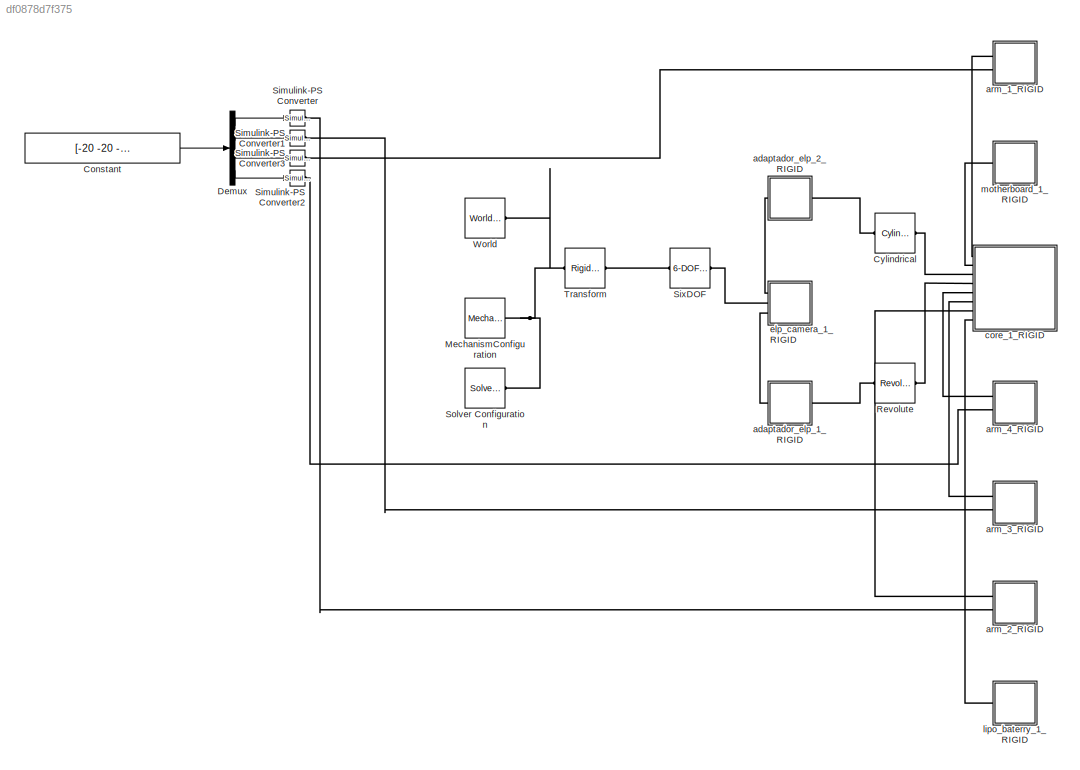
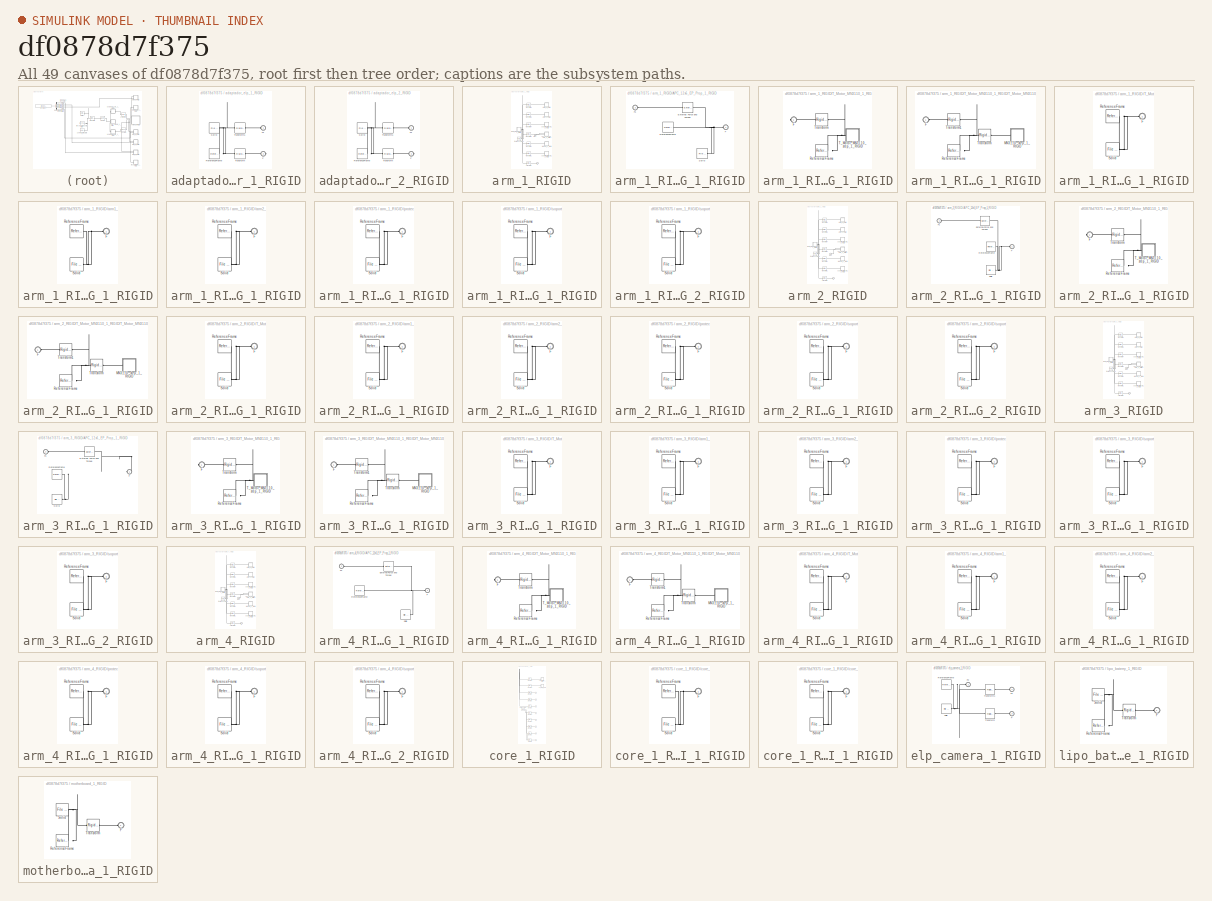
[diagram: thumbnail index - all 49 canvases of the model, root first then tree order]
MODEL slx_df0878d7f375
KIND model
CONFIG AbsTol = auto
CONFIG EnableMultiTasking = off
CONFIG FixedStep = auto
CONFIG MaxStep = auto
CONFIG MinStep = auto
CONFIG RelTol = 1e-3
CONFIG SampleTimeConstraint = Unconstrained
CONFIG Solver = VariableStepAuto
CONFIG SolverName = VariableStepAuto
CONFIG StartTime = 0.0
CONFIG StopTime = 10.0
WORKSPACE source: external: MATLAB File  (data not in archive)
BLOCK [Constant] Constant
  Value = [-20 -20  -8  -8]
BLOCK [Reference] Cylindrical  REF=sm_lib/Joints/Cylindrical
Joint
  Ports = [0, 0, 0, 0, 0, 1, 1]
  SourceBlock = sm_lib/Joints/Cylindrical\nJoint
  SourceProductBaseCode = MS
  SourceType = Cylindrical\nJoint
BLOCK [Demux] Demux
  Ports = [1, 4]
BLOCK [Reference] MechanismConfiguration  REF=sm_lib/Utilities/Mechanism
Configuration
  Ports = [0, 0, 0, 0, 0, 0, 1]
  SourceBlock = sm_lib/Utilities/Mechanism\nConfiguration
  SourceProductBaseCode = MS
  SourceType = Mechanism\nConfiguration
BLOCK [Reference] Revolute  REF=sm_lib/Joints/Revolute Joint
  Ports = [0, 0, 0, 0, 0, 1, 1]
  SourceBlock = sm_lib/Joints/Revolute Joint
  SourceProductBaseCode = MS
  SourceType = Revolute Joint
BLOCK [Reference] Simulink-PS Converter  REF=nesl_utility/Simulink-PS
Converter
  Ports = [1, 0, 0, 0, 0, 0, 1]
  SourceBlock = nesl_utility/Simulink-PS\nConverter
  SourceProductBaseCode = SS
  SourceType = Simulink-PS\nConverter
BLOCK [Reference] Simulink-PS Converter1  REF=nesl_utility/Simulink-PS
Converter
  Ports = [1, 0, 0, 0, 0, 0, 1]
  SourceBlock = nesl_utility/Simulink-PS\nConverter
  SourceProductBaseCode = SS
  SourceType = Simulink-PS\nConverter
BLOCK [Reference] Simulink-PS Converter2  REF=nesl_utility/Simulink-PS
Converter
  Ports = [1, 0, 0, 0, 0, 0, 1]
  SourceBlock = nesl_utility/Simulink-PS\nConverter
  SourceProductBaseCode = SS
  SourceType = Simulink-PS\nConverter
BLOCK [Reference] Simulink-PS Converter3  REF=nesl_utility/Simulink-PS
Converter
  Ports = [1, 0, 0, 0, 0, 0, 1]
  SourceBlock = nesl_utility/Simulink-PS\nConverter
  SourceProductBaseCode = SS
  SourceType = Simulink-PS\nConverter
BLOCK [Reference] SixDOF  REF=sm_lib/Joints/6-DOF Joint
  Ports = [0, 0, 0, 0, 0, 1, 1]
  SourceBlock = sm_lib/Joints/6-DOF Joint
  SourceProductBaseCode = MS
  SourceType = 6-DOF Joint
BLOCK [Reference] Solver Configuration  REF=nesl_utility/Solver
Configuration
  Ports = [0, 0, 0, 0, 0, 0, 1]
  SourceBlock = nesl_utility/Solver\nConfiguration
  SourceProductBaseCode = SS
  SourceType = Solver\nConfiguration
BLOCK [Reference] Transform  REF=sm_lib/Frames and
Transforms/Rigid
Transform
  Ports = [0, 0, 0, 0, 0, 1, 1]
  SourceBlock = sm_lib/Frames and\nTransforms/Rigid\nTransform
  SourceProductBaseCode = MS
  SourceType = Rigid\nTransform
BLOCK [Reference] World  REF=sm_lib/Frames and
Transforms/World Frame
  Ports = [0, 0, 0, 0, 0, 0, 1]
  SourceBlock = sm_lib/Frames and\nTransforms/World Frame
  SourceProductBaseCode = MS
  SourceType = World Frame
BLOCK [SubSystem] adaptador_elp_1_RIGID
  Ports = [0, 0, 0, 0, 0, 1, 1]
  RequestExecContextInheritance = off
BLOCK [PMIOPort] adaptador_elp_1_RIGID/F
  Port = 2
  Side = Right
BLOCK [PMIOPort] adaptador_elp_1_RIGID/F1
  Side = Left
BLOCK [Reference] adaptador_elp_1_RIGID/ReferenceFrame  REF=sm_lib/Frames and
Transforms/Reference
Frame
  Ports = [0, 0, 0, 0, 0, 0, 1]
  SourceBlock = sm_lib/Frames and\nTransforms/Reference\nFrame
  SourceProductBaseCode = MS
  SourceType = Reference\nFrame
BLOCK [Reference] adaptador_elp_1_RIGID/Solid  REF=sm_lib/Body Elements/File Solid
  Ports = [0, 0, 0, 0, 0, 0, 1]
  SourceBlock = sm_lib/Body Elements/File Solid
  SourceProductBaseCode = MS
  SourceType = File Solid
BLOCK [Reference] adaptador_elp_1_RIGID/Transform  REF=sm_lib/Frames and
Transforms/Rigid
Transform
  Ports = [0, 0, 0, 0, 0, 1, 1]
  SourceBlock = sm_lib/Frames and\nTransforms/Rigid\nTransform
  SourceProductBaseCode = MS
  SourceType = Rigid\nTransform
BLOCK [Reference] adaptador_elp_1_RIGID/Transform1  REF=sm_lib/Frames and
Transforms/Rigid
Transform
  Ports = [0, 0, 0, 0, 0, 1, 1]
  SourceBlock = sm_lib/Frames and\nTransforms/Rigid\nTransform
  SourceProductBaseCode = MS
  SourceType = Rigid\nTransform
BLOCK [SubSystem] adaptador_elp_2_RIGID
  Ports = [0, 0, 0, 0, 0, 1, 1]
  RequestExecContextInheritance = off
BLOCK [PMIOPort] adaptador_elp_2_RIGID/F
  Port = 2
  Side = Right
BLOCK [PMIOPort] adaptador_elp_2_RIGID/F1
  Side = Left
BLOCK [Reference] adaptador_elp_2_RIGID/ReferenceFrame  REF=sm_lib/Frames and
Transforms/Reference
Frame
  Ports = [0, 0, 0, 0, 0, 0, 1]
  SourceBlock = sm_lib/Frames and\nTransforms/Reference\nFrame
  SourceProductBaseCode = MS
  SourceType = Reference\nFrame
BLOCK [Reference] adaptador_elp_2_RIGID/Solid  REF=sm_lib/Body Elements/File Solid
  Ports = [0, 0, 0, 0, 0, 0, 1]
  SourceBlock = sm_lib/Body Elements/File Solid
  SourceProductBaseCode = MS
  SourceType = File Solid
BLOCK [Reference] adaptador_elp_2_RIGID/Transform  REF=sm_lib/Frames and
Transforms/Rigid
Transform
  Ports = [0, 0, 0, 0, 0, 1, 1]
  SourceBlock = sm_lib/Frames and\nTransforms/Rigid\nTransform
  SourceProductBaseCode = MS
  SourceType = Rigid\nTransform
BLOCK [Reference] adaptador_elp_2_RIGID/Transform1  REF=sm_lib/Frames and
Transforms/Rigid
Transform
  Ports = [0, 0, 0, 0, 0, 1, 1]
  SourceBlock = sm_lib/Frames and\nTransforms/Rigid\nTransform
  SourceProductBaseCode = MS
  SourceType = Rigid\nTransform
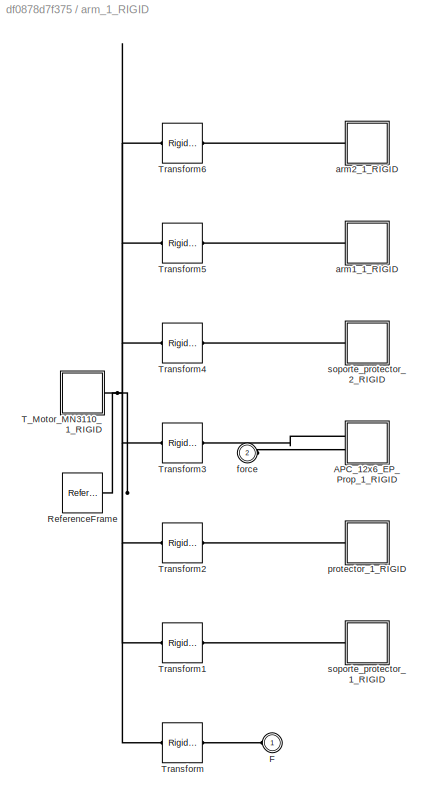
BLOCK [SubSystem] arm_1_RIGID
  Ports = [0, 0, 0, 0, 0, 2]
  RequestExecContextInheritance = off
BLOCK [SubSystem] arm_1_RIGID/APC_12x6_EP_Prop_1_RIGID
  Ports = [0, 0, 0, 0, 0, 2]
  RequestExecContextInheritance = off
BLOCK [Reference] arm_1_RIGID/APC_12x6_EP_Prop_1_RIGID/External Force and Torque  REF=sm_lib/Forces and
Torques/External Force
and Torque
  Ports = [0, 0, 0, 0, 0, 1, 1]
  SourceBlock = sm_lib/Forces and\nTorques/External Force\nand Torque
  SourceProductBaseCode = MS
  SourceType = External Force\nand Torque
BLOCK [PMIOPort] arm_1_RIGID/APC_12x6_EP_Prop_1_RIGID/F
  Side = Left
BLOCK [PMIOPort] arm_1_RIGID/APC_12x6_EP_Prop_1_RIGID/F1
  Port = 2
  Side = Left
BLOCK [Reference] arm_1_RIGID/APC_12x6_EP_Prop_1_RIGID/ReferenceFrame  REF=sm_lib/Frames and
Transforms/Reference
Frame
  Ports = [0, 0, 0, 0, 0, 0, 1]
  SourceBlock = sm_lib/Frames and\nTransforms/Reference\nFrame
  SourceProductBaseCode = MS
  SourceType = Reference\nFrame
BLOCK [Reference] arm_1_RIGID/APC_12x6_EP_Prop_1_RIGID/Solid  REF=sm_lib/Body Elements/File Solid
  Ports = [0, 0, 0, 0, 0, 0, 1]
  SourceBlock = sm_lib/Body Elements/File Solid
  SourceProductBaseCode = MS
  SourceType = File Solid
BLOCK [PMIOPort] arm_1_RIGID/F
  Side = Left
BLOCK [Reference] arm_1_RIGID/ReferenceFrame  REF=sm_lib/Frames and
Transforms/Reference
Frame
  Ports = [0, 0, 0, 0, 0, 0, 1]
  SourceBlock = sm_lib/Frames and\nTransforms/Reference\nFrame
  SourceProductBaseCode = MS
  SourceType = Reference\nFrame
BLOCK [SubSystem] arm_1_RIGID/T_Motor_MN3110_1_RIGID
  Ports = [0, 0, 0, 0, 0, 0, 1]
  RequestExecContextInheritance = off
BLOCK [PMIOPort] arm_1_RIGID/T_Motor_MN3110_1_RIGID/F
  Side = Right
BLOCK [Reference] arm_1_RIGID/T_Motor_MN3110_1_RIGID/ReferenceFrame  REF=sm_lib/Frames and
Transforms/Reference
Frame
  Ports = [0, 0, 0, 0, 0, 0, 1]
  SourceBlock = sm_lib/Frames and\nTransforms/Reference\nFrame
  SourceProductBaseCode = MS
  SourceType = Reference\nFrame
BLOCK [SubSystem] arm_1_RIGID/T_Motor_MN3110_1_RIGID/T_Motor_MN3110_step_1_RIGID
  Ports = [0, 0, 0, 0, 0, 1]
  RequestExecContextInheritance = off
BLOCK [PMIOPort] arm_1_RIGID/T_Motor_MN3110_1_RIGID/T_Motor_MN3110_step_1_RIGID/F
  Side = Left
BLOCK [SubSystem] arm_1_RIGID/T_Motor_MN3110_1_RIGID/T_Motor_MN3110_step_1_RIGID/MN3110_step_1_RIGID
  Ports = [0, 0, 0, 0, 0, 1]
  RequestExecContextInheritance = off
BLOCK [PMIOPort] arm_1_RIGID/T_Motor_MN3110_1_RIGID/T_Motor_MN3110_step_1_RIGID/MN3110_step_1_RIGID/F
  Side = Left
BLOCK [Reference] arm_1_RIGID/T_Motor_MN3110_1_RIGID/T_Motor_MN3110_step_1_RIGID/MN3110_step_1_RIGID/ReferenceFrame  REF=sm_lib/Frames and
Transforms/Reference
Frame
  Ports = [0, 0, 0, 0, 0, 0, 1]
  SourceBlock = sm_lib/Frames and\nTransforms/Reference\nFrame
  SourceProductBaseCode = MS
  SourceType = Reference\nFrame
BLOCK [Reference] arm_1_RIGID/T_Motor_MN3110_1_RIGID/T_Motor_MN3110_step_1_RIGID/MN3110_step_1_RIGID/Solid  REF=sm_lib/Body Elements/File Solid
  Ports = [0, 0, 0, 0, 0, 0, 1]
  SourceBlock = sm_lib/Body Elements/File Solid
  SourceProductBaseCode = MS
  SourceType = File Solid
BLOCK [Reference] arm_1_RIGID/T_Motor_MN3110_1_RIGID/T_Motor_MN3110_step_1_RIGID/ReferenceFrame  REF=sm_lib/Frames and
Transforms/Reference
Frame
  Ports = [0, 0, 0, 0, 0, 0, 1]
  SourceBlock = sm_lib/Frames and\nTransforms/Reference\nFrame
  SourceProductBaseCode = MS
  SourceType = Reference\nFrame
BLOCK [Reference] arm_1_RIGID/T_Motor_MN3110_1_RIGID/T_Motor_MN3110_step_1_RIGID/Transform  REF=sm_lib/Frames and
Transforms/Rigid
Transform
  Ports = [0, 0, 0, 0, 0, 1, 1]
  SourceBlock = sm_lib/Frames and\nTransforms/Rigid\nTransform
  SourceProductBaseCode = MS
  SourceType = Rigid\nTransform
BLOCK [Reference] arm_1_RIGID/T_Motor_MN3110_1_RIGID/T_Motor_MN3110_step_1_RIGID/Transform1  REF=sm_lib/Frames and
Transforms/Rigid
Transform
  Ports = [0, 0, 0, 0, 0, 1, 1]
  SourceBlock = sm_lib/Frames and\nTransforms/Rigid\nTransform
  SourceProductBaseCode = MS
  SourceType = Rigid\nTransform
BLOCK [Reference] arm_1_RIGID/T_Motor_MN3110_1_RIGID/Transform  REF=sm_lib/Frames and
Transforms/Rigid
Transform
  Ports = [0, 0, 0, 0, 0, 1, 1]
  SourceBlock = sm_lib/Frames and\nTransforms/Rigid\nTransform
  SourceProductBaseCode = MS
  SourceType = Rigid\nTransform
BLOCK [Reference] arm_1_RIGID/Transform  REF=sm_lib/Frames and
Transforms/Rigid
Transform
  Ports = [0, 0, 0, 0, 0, 1, 1]
  SourceBlock = sm_lib/Frames and\nTransforms/Rigid\nTransform
  SourceProductBaseCode = MS
  SourceType = Rigid\nTransform
BLOCK [Reference] arm_1_RIGID/Transform1  REF=sm_lib/Frames and
Transforms/Rigid
Transform
  Ports = [0, 0, 0, 0, 0, 1, 1]
  SourceBlock = sm_lib/Frames and\nTransforms/Rigid\nTransform
  SourceProductBaseCode = MS
  SourceType = Rigid\nTransform
BLOCK [Reference] arm_1_RIGID/Transform2  REF=sm_lib/Frames and
Transforms/Rigid
Transform
  Ports = [0, 0, 0, 0, 0, 1, 1]
  SourceBlock = sm_lib/Frames and\nTransforms/Rigid\nTransform
  SourceProductBaseCode = MS
  SourceType = Rigid\nTransform
BLOCK [Reference] arm_1_RIGID/Transform3  REF=sm_lib/Frames and
Transforms/Rigid
Transform
  Ports = [0, 0, 0, 0, 0, 1, 1]
  SourceBlock = sm_lib/Frames and\nTransforms/Rigid\nTransform
  SourceProductBaseCode = MS
  SourceType = Rigid\nTransform
BLOCK [Reference] arm_1_RIGID/Transform4  REF=sm_lib/Frames and
Transforms/Rigid
Transform
  Ports = [0, 0, 0, 0, 0, 1, 1]
  SourceBlock = sm_lib/Frames and\nTransforms/Rigid\nTransform
  SourceProductBaseCode = MS
  SourceType = Rigid\nTransform
BLOCK [Reference] arm_1_RIGID/Transform5  REF=sm_lib/Frames and
Transforms/Rigid
Transform
  Ports = [0, 0, 0, 0, 0, 1, 1]
  SourceBlock = sm_lib/Frames and\nTransforms/Rigid\nTransform
  SourceProductBaseCode = MS
  SourceType = Rigid\nTransform
BLOCK [Reference] arm_1_RIGID/Transform6  REF=sm_lib/Frames and
Transforms/Rigid
Transform
  Ports = [0, 0, 0, 0, 0, 1, 1]
  SourceBlock = sm_lib/Frames and\nTransforms/Rigid\nTransform
  SourceProductBaseCode = MS
  SourceType = Rigid\nTransform
BLOCK [SubSystem] arm_1_RIGID/arm1_1_RIGID
  Ports = [0, 0, 0, 0, 0, 1]
  RequestExecContextInheritance = off
BLOCK [PMIOPort] arm_1_RIGID/arm1_1_RIGID/F
  Side = Left
BLOCK [Reference] arm_1_RIGID/arm1_1_RIGID/ReferenceFrame  REF=sm_lib/Frames and
Transforms/Reference
Frame
  Ports = [0, 0, 0, 0, 0, 0, 1]
  SourceBlock = sm_lib/Frames and\nTransforms/Reference\nFrame
  SourceProductBaseCode = MS
  SourceType = Reference\nFrame
BLOCK [Reference] arm_1_RIGID/arm1_1_RIGID/Solid  REF=sm_lib/Body Elements/File Solid
  Ports = [0, 0, 0, 0, 0, 0, 1]
  SourceBlock = sm_lib/Body Elements/File Solid
  SourceProductBaseCode = MS
  SourceType = File Solid
BLOCK [SubSystem] arm_1_RIGID/arm2_1_RIGID
  Ports = [0, 0, 0, 0, 0, 1]
  RequestExecContextInheritance = off
BLOCK [PMIOPort] arm_1_RIGID/arm2_1_RIGID/F
  Side = Left
BLOCK [Reference] arm_1_RIGID/arm2_1_RIGID/ReferenceFrame  REF=sm_lib/Frames and
Transforms/Reference
Frame
  Ports = [0, 0, 0, 0, 0, 0, 1]
  SourceBlock = sm_lib/Frames and\nTransforms/Reference\nFrame
  SourceProductBaseCode = MS
  SourceType = Reference\nFrame
BLOCK [Reference] arm_1_RIGID/arm2_1_RIGID/Solid  REF=sm_lib/Body Elements/File Solid
  Ports = [0, 0, 0, 0, 0, 0, 1]
  SourceBlock = sm_lib/Body Elements/File Solid
  SourceProductBaseCode = MS
  SourceType = File Solid
BLOCK [PMIOPort] arm_1_RIGID/force
  Port = 2
  Side = Left
BLOCK [SubSystem] arm_1_RIGID/protector_1_RIGID
  Ports = [0, 0, 0, 0, 0, 1]
  RequestExecContextInheritance = off
BLOCK [PMIOPort] arm_1_RIGID/protector_1_RIGID/F
  Side = Left
BLOCK [Reference] arm_1_RIGID/protector_1_RIGID/ReferenceFrame  REF=sm_lib/Frames and
Transforms/Reference
Frame
  Ports = [0, 0, 0, 0, 0, 0, 1]
  SourceBlock = sm_lib/Frames and\nTransforms/Reference\nFrame
  SourceProductBaseCode = MS
  SourceType = Reference\nFrame
BLOCK [Reference] arm_1_RIGID/protector_1_RIGID/Solid  REF=sm_lib/Body Elements/File Solid
  Ports = [0, 0, 0, 0, 0, 0, 1]
  SourceBlock = sm_lib/Body Elements/File Solid
  SourceProductBaseCode = MS
  SourceType = File Solid
BLOCK [SubSystem] arm_1_RIGID/soporte_protector_1_RIGID
  Ports = [0, 0, 0, 0, 0, 1]
  RequestExecContextInheritance = off
BLOCK [PMIOPort] arm_1_RIGID/soporte_protector_1_RIGID/F
  Side = Left
BLOCK [Reference] arm_1_RIGID/soporte_protector_1_RIGID/ReferenceFrame  REF=sm_lib/Frames and
Transforms/Reference
Frame
  Ports = [0, 0, 0, 0, 0, 0, 1]
  SourceBlock = sm_lib/Frames and\nTransforms/Reference\nFrame
  SourceProductBaseCode = MS
  SourceType = Reference\nFrame
BLOCK [Reference] arm_1_RIGID/soporte_protector_1_RIGID/Solid  REF=sm_lib/Body Elements/File Solid
  Ports = [0, 0, 0, 0, 0, 0, 1]
  SourceBlock = sm_lib/Body Elements/File Solid
  SourceProductBaseCode = MS
  SourceType = File Solid
BLOCK [SubSystem] arm_1_RIGID/soporte_protector_2_RIGID
  Ports = [0, 0, 0, 0, 0, 1]
  RequestExecContextInheritance = off
BLOCK [PMIOPort] arm_1_RIGID/soporte_protector_2_RIGID/F
  Side = Left
BLOCK [Reference] arm_1_RIGID/soporte_protector_2_RIGID/ReferenceFrame  REF=sm_lib/Frames and
Transforms/Reference
Frame
  Ports = [0, 0, 0, 0, 0, 0, 1]
  SourceBlock = sm_lib/Frames and\nTransforms/Reference\nFrame
  SourceProductBaseCode = MS
  SourceType = Reference\nFrame
BLOCK [Reference] arm_1_RIGID/soporte_protector_2_RIGID/Solid  REF=sm_lib/Body Elements/File Solid
  Ports = [0, 0, 0, 0, 0, 0, 1]
  SourceBlock = sm_lib/Body Elements/File Solid
  SourceProductBaseCode = MS
  SourceType = File Solid
BLOCK [SubSystem] arm_2_RIGID
  Ports = [0, 0, 0, 0, 0, 2]
  RequestExecContextInheritance = off
BLOCK [SubSystem] arm_2_RIGID/APC_12x6_EP_Prop_1_RIGID
  Ports = [0, 0, 0, 0, 0, 2]
  RequestExecContextInheritance = off
BLOCK [Reference] arm_2_RIGID/APC_12x6_EP_Prop_1_RIGID/External Force and Torque  REF=sm_lib/Forces and
Torques/External Force
and Torque
  Ports = [0, 0, 0, 0, 0, 1, 1]
  SourceBlock = sm_lib/Forces and\nTorques/External Force\nand Torque
  SourceProductBaseCode = MS
  SourceType = External Force\nand Torque
BLOCK [PMIOPort] arm_2_RIGID/APC_12x6_EP_Prop_1_RIGID/F
  Side = Left
BLOCK [PMIOPort] arm_2_RIGID/APC_12x6_EP_Prop_1_RIGID/F1
  Port = 2
  Side = Left
BLOCK [Reference] arm_2_RIGID/APC_12x6_EP_Prop_1_RIGID/ReferenceFrame  REF=sm_lib/Frames and
Transforms/Reference
Frame
  Ports = [0, 0, 0, 0, 0, 0, 1]
  SourceBlock = sm_lib/Frames and\nTransforms/Reference\nFrame
  SourceProductBaseCode = MS
  SourceType = Reference\nFrame
BLOCK [Reference] arm_2_RIGID/APC_12x6_EP_Prop_1_RIGID/Solid  REF=sm_lib/Body Elements/File Solid
  Ports = [0, 0, 0, 0, 0, 0, 1]
  SourceBlock = sm_lib/Body Elements/File Solid
  SourceProductBaseCode = MS
  SourceType = File Solid
BLOCK [PMIOPort] arm_2_RIGID/F
  Side = Left
BLOCK [Reference] arm_2_RIGID/ReferenceFrame  REF=sm_lib/Frames and
Transforms/Reference
Frame
  Ports = [0, 0, 0, 0, 0, 0, 1]
  SourceBlock = sm_lib/Frames and\nTransforms/Reference\nFrame
  SourceProductBaseCode = MS
  SourceType = Reference\nFrame
BLOCK [SubSystem] arm_2_RIGID/T_Motor_MN3110_1_RIGID
  Ports = [0, 0, 0, 0, 0, 0, 1]
  RequestExecContextInheritance = off
BLOCK [PMIOPort] arm_2_RIGID/T_Motor_MN3110_1_RIGID/F
  Side = Right
BLOCK [Reference] arm_2_RIGID/T_Motor_MN3110_1_RIGID/ReferenceFrame  REF=sm_lib/Frames and
Transforms/Reference
Frame
  Ports = [0, 0, 0, 0, 0, 0, 1]
  SourceBlock = sm_lib/Frames and\nTransforms/Reference\nFrame
  SourceProductBaseCode = MS
  SourceType = Reference\nFrame
BLOCK [SubSystem] arm_2_RIGID/T_Motor_MN3110_1_RIGID/T_Motor_MN3110_step_1_RIGID
  Ports = [0, 0, 0, 0, 0, 1]
  RequestExecContextInheritance = off
BLOCK [PMIOPort] arm_2_RIGID/T_Motor_MN3110_1_RIGID/T_Motor_MN3110_step_1_RIGID/F
  Side = Left
BLOCK [SubSystem] arm_2_RIGID/T_Motor_MN3110_1_RIGID/T_Motor_MN3110_step_1_RIGID/MN3110_step_1_RIGID
  Ports = [0, 0, 0, 0, 0, 1]
  RequestExecContextInheritance = off
BLOCK [PMIOPort] arm_2_RIGID/T_Motor_MN3110_1_RIGID/T_Motor_MN3110_step_1_RIGID/MN3110_step_1_RIGID/F
  Side = Left
BLOCK [Reference] arm_2_RIGID/T_Motor_MN3110_1_RIGID/T_Motor_MN3110_step_1_RIGID/MN3110_step_1_RIGID/ReferenceFrame  REF=sm_lib/Frames and
Transforms/Reference
Frame
  Ports = [0, 0, 0, 0, 0, 0, 1]
  SourceBlock = sm_lib/Frames and\nTransforms/Reference\nFrame
  SourceProductBaseCode = MS
  SourceType = Reference\nFrame
BLOCK [Reference] arm_2_RIGID/T_Motor_MN3110_1_RIGID/T_Motor_MN3110_step_1_RIGID/MN3110_step_1_RIGID/Solid  REF=sm_lib/Body Elements/File Solid
  Ports = [0, 0, 0, 0, 0, 0, 1]
  SourceBlock = sm_lib/Body Elements/File Solid
  SourceProductBaseCode = MS
  SourceType = File Solid
BLOCK [Reference] arm_2_RIGID/T_Motor_MN3110_1_RIGID/T_Motor_MN3110_step_1_RIGID/ReferenceFrame  REF=sm_lib/Frames and
Transforms/Reference
Frame
  Ports = [0, 0, 0, 0, 0, 0, 1]
  SourceBlock = sm_lib/Frames and\nTransforms/Reference\nFrame
  SourceProductBaseCode = MS
  SourceType = Reference\nFrame
BLOCK [Reference] arm_2_RIGID/T_Motor_MN3110_1_RIGID/T_Motor_MN3110_step_1_RIGID/Transform  REF=sm_lib/Frames and
Transforms/Rigid
Transform
  Ports = [0, 0, 0, 0, 0, 1, 1]
  SourceBlock = sm_lib/Frames and\nTransforms/Rigid\nTransform
  SourceProductBaseCode = MS
  SourceType = Rigid\nTransform
BLOCK [Reference] arm_2_RIGID/T_Motor_MN3110_1_RIGID/T_Motor_MN3110_step_1_RIGID/Transform1  REF=sm_lib/Frames and
Transforms/Rigid
Transform
  Ports = [0, 0, 0, 0, 0, 1, 1]
  SourceBlock = sm_lib/Frames and\nTransforms/Rigid\nTransform
  SourceProductBaseCode = MS
  SourceType = Rigid\nTransform
BLOCK [Reference] arm_2_RIGID/T_Motor_MN3110_1_RIGID/Transform  REF=sm_lib/Frames and
Transforms/Rigid
Transform
  Ports = [0, 0, 0, 0, 0, 1, 1]
  SourceBlock = sm_lib/Frames and\nTransforms/Rigid\nTransform
  SourceProductBaseCode = MS
  SourceType = Rigid\nTransform
BLOCK [Reference] arm_2_RIGID/Transform  REF=sm_lib/Frames and
Transforms/Rigid
Transform
  Ports = [0, 0, 0, 0, 0, 1, 1]
  SourceBlock = sm_lib/Frames and\nTransforms/Rigid\nTransform
  SourceProductBaseCode = MS
  SourceType = Rigid\nTransform
BLOCK [Reference] arm_2_RIGID/Transform1  REF=sm_lib/Frames and
Transforms/Rigid
Transform
  Ports = [0, 0, 0, 0, 0, 1, 1]
  SourceBlock = sm_lib/Frames and\nTransforms/Rigid\nTransform
  SourceProductBaseCode = MS
  SourceType = Rigid\nTransform
BLOCK [Reference] arm_2_RIGID/Transform2  REF=sm_lib/Frames and
Transforms/Rigid
Transform
  Ports = [0, 0, 0, 0, 0, 1, 1]
  SourceBlock = sm_lib/Frames and\nTransforms/Rigid\nTransform
  SourceProductBaseCode = MS
  SourceType = Rigid\nTransform
BLOCK [Reference] arm_2_RIGID/Transform3  REF=sm_lib/Frames and
Transforms/Rigid
Transform
  Ports = [0, 0, 0, 0, 0, 1, 1]
  SourceBlock = sm_lib/Frames and\nTransforms/Rigid\nTransform
  SourceProductBaseCode = MS
  SourceType = Rigid\nTransform
BLOCK [Reference] arm_2_RIGID/Transform4  REF=sm_lib/Frames and
Transforms/Rigid
Transform
  Ports = [0, 0, 0, 0, 0, 1, 1]
  SourceBlock = sm_lib/Frames and\nTransforms/Rigid\nTransform
  SourceProductBaseCode = MS
  SourceType = Rigid\nTransform
BLOCK [Reference] arm_2_RIGID/Transform5  REF=sm_lib/Frames and
Transforms/Rigid
Transform
  Ports = [0, 0, 0, 0, 0, 1, 1]
  SourceBlock = sm_lib/Frames and\nTransforms/Rigid\nTransform
  SourceProductBaseCode = MS
  SourceType = Rigid\nTransform
BLOCK [Reference] arm_2_RIGID/Transform6  REF=sm_lib/Frames and
Transforms/Rigid
Transform
  Ports = [0, 0, 0, 0, 0, 1, 1]
  SourceBlock = sm_lib/Frames and\nTransforms/Rigid\nTransform
  SourceProductBaseCode = MS
  SourceType = Rigid\nTransform
BLOCK [SubSystem] arm_2_RIGID/arm1_1_RIGID
  Ports = [0, 0, 0, 0, 0, 1]
  RequestExecContextInheritance = off
BLOCK [PMIOPort] arm_2_RIGID/arm1_1_RIGID/F
  Side = Left
BLOCK [Reference] arm_2_RIGID/arm1_1_RIGID/ReferenceFrame  REF=sm_lib/Frames and
Transforms/Reference
Frame
  Ports = [0, 0, 0, 0, 0, 0, 1]
  SourceBlock = sm_lib/Frames and\nTransforms/Reference\nFrame
  SourceProductBaseCode = MS
  SourceType = Reference\nFrame
BLOCK [Reference] arm_2_RIGID/arm1_1_RIGID/Solid  REF=sm_lib/Body Elements/File Solid
  Ports = [0, 0, 0, 0, 0, 0, 1]
  SourceBlock = sm_lib/Body Elements/File Solid
  SourceProductBaseCode = MS
  SourceType = File Solid
BLOCK [SubSystem] arm_2_RIGID/arm2_1_RIGID
  Ports = [0, 0, 0, 0, 0, 1]
  RequestExecContextInheritance = off
BLOCK [PMIOPort] arm_2_RIGID/arm2_1_RIGID/F
  Side = Left
BLOCK [Reference] arm_2_RIGID/arm2_1_RIGID/ReferenceFrame  REF=sm_lib/Frames and
Transforms/Reference
Frame
  Ports = [0, 0, 0, 0, 0, 0, 1]
  SourceBlock = sm_lib/Frames and\nTransforms/Reference\nFrame
  SourceProductBaseCode = MS
  SourceType = Reference\nFrame
BLOCK [Reference] arm_2_RIGID/arm2_1_RIGID/Solid  REF=sm_lib/Body Elements/File Solid
  Ports = [0, 0, 0, 0, 0, 0, 1]
  SourceBlock = sm_lib/Body Elements/File Solid
  SourceProductBaseCode = MS
  SourceType = File Solid
BLOCK [PMIOPort] arm_2_RIGID/force
  Port = 2
  Side = Left
BLOCK [SubSystem] arm_2_RIGID/protector_1_RIGID
  Ports = [0, 0, 0, 0, 0, 1]
  RequestExecContextInheritance = off
BLOCK [PMIOPort] arm_2_RIGID/protector_1_RIGID/F
  Side = Left
BLOCK [Reference] arm_2_RIGID/protector_1_RIGID/ReferenceFrame  REF=sm_lib/Frames and
Transforms/Reference
Frame
  Ports = [0, 0, 0, 0, 0, 0, 1]
  SourceBlock = sm_lib/Frames and\nTransforms/Reference\nFrame
  SourceProductBaseCode = MS
  SourceType = Reference\nFrame
BLOCK [Reference] arm_2_RIGID/protector_1_RIGID/Solid  REF=sm_lib/Body Elements/File Solid
  Ports = [0, 0, 0, 0, 0, 0, 1]
  SourceBlock = sm_lib/Body Elements/File Solid
  SourceProductBaseCode = MS
  SourceType = File Solid
BLOCK [SubSystem] arm_2_RIGID/soporte_protector_1_RIGID
  Ports = [0, 0, 0, 0, 0, 1]
  RequestExecContextInheritance = off
BLOCK [PMIOPort] arm_2_RIGID/soporte_protector_1_RIGID/F
  Side = Left
BLOCK [Reference] arm_2_RIGID/soporte_protector_1_RIGID/ReferenceFrame  REF=sm_lib/Frames and
Transforms/Reference
Frame
  Ports = [0, 0, 0, 0, 0, 0, 1]
  SourceBlock = sm_lib/Frames and\nTransforms/Reference\nFrame
  SourceProductBaseCode = MS
  SourceType = Reference\nFrame
BLOCK [Reference] arm_2_RIGID/soporte_protector_1_RIGID/Solid  REF=sm_lib/Body Elements/File Solid
  Ports = [0, 0, 0, 0, 0, 0, 1]
  SourceBlock = sm_lib/Body Elements/File Solid
  SourceProductBaseCode = MS
  SourceType = File Solid
BLOCK [SubSystem] arm_2_RIGID/soporte_protector_2_RIGID
  Ports = [0, 0, 0, 0, 0, 1]
  RequestExecContextInheritance = off
BLOCK [PMIOPort] arm_2_RIGID/soporte_protector_2_RIGID/F
  Side = Left
BLOCK [Reference] arm_2_RIGID/soporte_protector_2_RIGID/ReferenceFrame  REF=sm_lib/Frames and
Transforms/Reference
Frame
  Ports = [0, 0, 0, 0, 0, 0, 1]
  SourceBlock = sm_lib/Frames and\nTransforms/Reference\nFrame
  SourceProductBaseCode = MS
  SourceType = Reference\nFrame
BLOCK [Reference] arm_2_RIGID/soporte_protector_2_RIGID/Solid  REF=sm_lib/Body Elements/File Solid
  Ports = [0, 0, 0, 0, 0, 0, 1]
  SourceBlock = sm_lib/Body Elements/File Solid
  SourceProductBaseCode = MS
  SourceType = File Solid
BLOCK [SubSystem] arm_3_RIGID
  Ports = [0, 0, 0, 0, 0, 2]
  RequestExecContextInheritance = off
BLOCK [SubSystem] arm_3_RIGID/APC_12x6_EP_Prop_1_RIGID
  Ports = [0, 0, 0, 0, 0, 2]
  RequestExecContextInheritance = off
BLOCK [Reference] arm_3_RIGID/APC_12x6_EP_Prop_1_RIGID/External Force and Torque  REF=sm_lib/Forces and
Torques/External Force
and Torque
  Ports = [0, 0, 0, 0, 0, 1, 1]
  SourceBlock = sm_lib/Forces and\nTorques/External Force\nand Torque
  SourceProductBaseCode = MS
  SourceType = External Force\nand Torque
BLOCK [PMIOPort] arm_3_RIGID/APC_12x6_EP_Prop_1_RIGID/F
  Side = Left
BLOCK [PMIOPort] arm_3_RIGID/APC_12x6_EP_Prop_1_RIGID/F1
  Port = 2
  Side = Left
BLOCK [Reference] arm_3_RIGID/APC_12x6_EP_Prop_1_RIGID/ReferenceFrame  REF=sm_lib/Frames and
Transforms/Reference
Frame
  Ports = [0, 0, 0, 0, 0, 0, 1]
  SourceBlock = sm_lib/Frames and\nTransforms/Reference\nFrame
  SourceProductBaseCode = MS
  SourceType = Reference\nFrame
BLOCK [Reference] arm_3_RIGID/APC_12x6_EP_Prop_1_RIGID/Solid  REF=sm_lib/Body Elements/File Solid
  Ports = [0, 0, 0, 0, 0, 0, 1]
  SourceBlock = sm_lib/Body Elements/File Solid
  SourceProductBaseCode = MS
  SourceType = File Solid
BLOCK [PMIOPort] arm_3_RIGID/F
  Side = Left
BLOCK [Reference] arm_3_RIGID/ReferenceFrame  REF=sm_lib/Frames and
Transforms/Reference
Frame
  Ports = [0, 0, 0, 0, 0, 0, 1]
  SourceBlock = sm_lib/Frames and\nTransforms/Reference\nFrame
  SourceProductBaseCode = MS
  SourceType = Reference\nFrame
BLOCK [SubSystem] arm_3_RIGID/T_Motor_MN3110_1_RIGID
  Ports = [0, 0, 0, 0, 0, 0, 1]
  RequestExecContextInheritance = off
BLOCK [PMIOPort] arm_3_RIGID/T_Motor_MN3110_1_RIGID/F
  Side = Right
BLOCK [Reference] arm_3_RIGID/T_Motor_MN3110_1_RIGID/ReferenceFrame  REF=sm_lib/Frames and
Transforms/Reference
Frame
  Ports = [0, 0, 0, 0, 0, 0, 1]
  SourceBlock = sm_lib/Frames and\nTransforms/Reference\nFrame
  SourceProductBaseCode = MS
  SourceType = Reference\nFrame
BLOCK [SubSystem] arm_3_RIGID/T_Motor_MN3110_1_RIGID/T_Motor_MN3110_step_1_RIGID
  Ports = [0, 0, 0, 0, 0, 1]
  RequestExecContextInheritance = off
BLOCK [PMIOPort] arm_3_RIGID/T_Motor_MN3110_1_RIGID/T_Motor_MN3110_step_1_RIGID/F
  Side = Left
BLOCK [SubSystem] arm_3_RIGID/T_Motor_MN3110_1_RIGID/T_Motor_MN3110_step_1_RIGID/MN3110_step_1_RIGID
  Ports = [0, 0, 0, 0, 0, 1]
  RequestExecContextInheritance = off
BLOCK [PMIOPort] arm_3_RIGID/T_Motor_MN3110_1_RIGID/T_Motor_MN3110_step_1_RIGID/MN3110_step_1_RIGID/F
  Side = Left
BLOCK [Reference] arm_3_RIGID/T_Motor_MN3110_1_RIGID/T_Motor_MN3110_step_1_RIGID/MN3110_step_1_RIGID/ReferenceFrame  REF=sm_lib/Frames and
Transforms/Reference
Frame
  Ports = [0, 0, 0, 0, 0, 0, 1]
  SourceBlock = sm_lib/Frames and\nTransforms/Reference\nFrame
  SourceProductBaseCode = MS
  SourceType = Reference\nFrame
BLOCK [Reference] arm_3_RIGID/T_Motor_MN3110_1_RIGID/T_Motor_MN3110_step_1_RIGID/MN3110_step_1_RIGID/Solid  REF=sm_lib/Body Elements/File Solid
  Ports = [0, 0, 0, 0, 0, 0, 1]
  SourceBlock = sm_lib/Body Elements/File Solid
  SourceProductBaseCode = MS
  SourceType = File Solid
BLOCK [Reference] arm_3_RIGID/T_Motor_MN3110_1_RIGID/T_Motor_MN3110_step_1_RIGID/ReferenceFrame  REF=sm_lib/Frames and
Transforms/Reference
Frame
  Ports = [0, 0, 0, 0, 0, 0, 1]
  SourceBlock = sm_lib/Frames and\nTransforms/Reference\nFrame
  SourceProductBaseCode = MS
  SourceType = Reference\nFrame
BLOCK [Reference] arm_3_RIGID/T_Motor_MN3110_1_RIGID/T_Motor_MN3110_step_1_RIGID/Transform  REF=sm_lib/Frames and
Transforms/Rigid
Transform
  Ports = [0, 0, 0, 0, 0, 1, 1]
  SourceBlock = sm_lib/Frames and\nTransforms/Rigid\nTransform
  SourceProductBaseCode = MS
  SourceType = Rigid\nTransform
BLOCK [Reference] arm_3_RIGID/T_Motor_MN3110_1_RIGID/T_Motor_MN3110_step_1_RIGID/Transform1  REF=sm_lib/Frames and
Transforms/Rigid
Transform
  Ports = [0, 0, 0, 0, 0, 1, 1]
  SourceBlock = sm_lib/Frames and\nTransforms/Rigid\nTransform
  SourceProductBaseCode = MS
  SourceType = Rigid\nTransform
BLOCK [Reference] arm_3_RIGID/T_Motor_MN3110_1_RIGID/Transform  REF=sm_lib/Frames and
Transforms/Rigid
Transform
  Ports = [0, 0, 0, 0, 0, 1, 1]
  SourceBlock = sm_lib/Frames and\nTransforms/Rigid\nTransform
  SourceProductBaseCode = MS
  SourceType = Rigid\nTransform
BLOCK [Reference] arm_3_RIGID/Transform  REF=sm_lib/Frames and
Transforms/Rigid
Transform
  Ports = [0, 0, 0, 0, 0, 1, 1]
  SourceBlock = sm_lib/Frames and\nTransforms/Rigid\nTransform
  SourceProductBaseCode = MS
  SourceType = Rigid\nTransform
BLOCK [Reference] arm_3_RIGID/Transform1  REF=sm_lib/Frames and
Transforms/Rigid
Transform
  Ports = [0, 0, 0, 0, 0, 1, 1]
  SourceBlock = sm_lib/Frames and\nTransforms/Rigid\nTransform
  SourceProductBaseCode = MS
  SourceType = Rigid\nTransform
BLOCK [Reference] arm_3_RIGID/Transform2  REF=sm_lib/Frames and
Transforms/Rigid
Transform
  Ports = [0, 0, 0, 0, 0, 1, 1]
  SourceBlock = sm_lib/Frames and\nTransforms/Rigid\nTransform
  SourceProductBaseCode = MS
  SourceType = Rigid\nTransform
BLOCK [Reference] arm_3_RIGID/Transform3  REF=sm_lib/Frames and
Transforms/Rigid
Transform
  Ports = [0, 0, 0, 0, 0, 1, 1]
  SourceBlock = sm_lib/Frames and\nTransforms/Rigid\nTransform
  SourceProductBaseCode = MS
  SourceType = Rigid\nTransform
BLOCK [Reference] arm_3_RIGID/Transform4  REF=sm_lib/Frames and
Transforms/Rigid
Transform
  Ports = [0, 0, 0, 0, 0, 1, 1]
  SourceBlock = sm_lib/Frames and\nTransforms/Rigid\nTransform
  SourceProductBaseCode = MS
  SourceType = Rigid\nTransform
BLOCK [Reference] arm_3_RIGID/Transform5  REF=sm_lib/Frames and
Transforms/Rigid
Transform
  Ports = [0, 0, 0, 0, 0, 1, 1]
  SourceBlock = sm_lib/Frames and\nTransforms/Rigid\nTransform
  SourceProductBaseCode = MS
  SourceType = Rigid\nTransform
BLOCK [Reference] arm_3_RIGID/Transform6  REF=sm_lib/Frames and
Transforms/Rigid
Transform
  Ports = [0, 0, 0, 0, 0, 1, 1]
  SourceBlock = sm_lib/Frames and\nTransforms/Rigid\nTransform
  SourceProductBaseCode = MS
  SourceType = Rigid\nTransform
BLOCK [SubSystem] arm_3_RIGID/arm1_1_RIGID
  Ports = [0, 0, 0, 0, 0, 1]
  RequestExecContextInheritance = off
BLOCK [PMIOPort] arm_3_RIGID/arm1_1_RIGID/F
  Side = Left
BLOCK [Reference] arm_3_RIGID/arm1_1_RIGID/ReferenceFrame  REF=sm_lib/Frames and
Transforms/Reference
Frame
  Ports = [0, 0, 0, 0, 0, 0, 1]
  SourceBlock = sm_lib/Frames and\nTransforms/Reference\nFrame
  SourceProductBaseCode = MS
  SourceType = Reference\nFrame
BLOCK [Reference] arm_3_RIGID/arm1_1_RIGID/Solid  REF=sm_lib/Body Elements/File Solid
  Ports = [0, 0, 0, 0, 0, 0, 1]
  SourceBlock = sm_lib/Body Elements/File Solid
  SourceProductBaseCode = MS
  SourceType = File Solid
BLOCK [SubSystem] arm_3_RIGID/arm2_1_RIGID
  Ports = [0, 0, 0, 0, 0, 1]
  RequestExecContextInheritance = off
BLOCK [PMIOPort] arm_3_RIGID/arm2_1_RIGID/F
  Side = Left
BLOCK [Reference] arm_3_RIGID/arm2_1_RIGID/ReferenceFrame  REF=sm_lib/Frames and
Transforms/Reference
Frame
  Ports = [0, 0, 0, 0, 0, 0, 1]
  SourceBlock = sm_lib/Frames and\nTransforms/Reference\nFrame
  SourceProductBaseCode = MS
  SourceType = Reference\nFrame
BLOCK [Reference] arm_3_RIGID/arm2_1_RIGID/Solid  REF=sm_lib/Body Elements/File Solid
  Ports = [0, 0, 0, 0, 0, 0, 1]
  SourceBlock = sm_lib/Body Elements/File Solid
  SourceProductBaseCode = MS
  SourceType = File Solid
BLOCK [PMIOPort] arm_3_RIGID/force
  Port = 2
  Side = Left
BLOCK [SubSystem] arm_3_RIGID/protector_1_RIGID
  Ports = [0, 0, 0, 0, 0, 1]
  RequestExecContextInheritance = off
BLOCK [PMIOPort] arm_3_RIGID/protector_1_RIGID/F
  Side = Left
BLOCK [Reference] arm_3_RIGID/protector_1_RIGID/ReferenceFrame  REF=sm_lib/Frames and
Transforms/Reference
Frame
  Ports = [0, 0, 0, 0, 0, 0, 1]
  SourceBlock = sm_lib/Frames and\nTransforms/Reference\nFrame
  SourceProductBaseCode = MS
  SourceType = Reference\nFrame
BLOCK [Reference] arm_3_RIGID/protector_1_RIGID/Solid  REF=sm_lib/Body Elements/File Solid
  Ports = [0, 0, 0, 0, 0, 0, 1]
  SourceBlock = sm_lib/Body Elements/File Solid
  SourceProductBaseCode = MS
  SourceType = File Solid
BLOCK [SubSystem] arm_3_RIGID/soporte_protector_1_RIGID
  Ports = [0, 0, 0, 0, 0, 1]
  RequestExecContextInheritance = off
BLOCK [PMIOPort] arm_3_RIGID/soporte_protector_1_RIGID/F
  Side = Left
BLOCK [Reference] arm_3_RIGID/soporte_protector_1_RIGID/ReferenceFrame  REF=sm_lib/Frames and
Transforms/Reference
Frame
  Ports = [0, 0, 0, 0, 0, 0, 1]
  SourceBlock = sm_lib/Frames and\nTransforms/Reference\nFrame
  SourceProductBaseCode = MS
  SourceType = Reference\nFrame
BLOCK [Reference] arm_3_RIGID/soporte_protector_1_RIGID/Solid  REF=sm_lib/Body Elements/File Solid
  Ports = [0, 0, 0, 0, 0, 0, 1]
  SourceBlock = sm_lib/Body Elements/File Solid
  SourceProductBaseCode = MS
  SourceType = File Solid
BLOCK [SubSystem] arm_3_RIGID/soporte_protector_2_RIGID
  Ports = [0, 0, 0, 0, 0, 1]
  RequestExecContextInheritance = off
BLOCK [PMIOPort] arm_3_RIGID/soporte_protector_2_RIGID/F
  Side = Left
BLOCK [Reference] arm_3_RIGID/soporte_protector_2_RIGID/ReferenceFrame  REF=sm_lib/Frames and
Transforms/Reference
Frame
  Ports = [0, 0, 0, 0, 0, 0, 1]
  SourceBlock = sm_lib/Frames and\nTransforms/Reference\nFrame
  SourceProductBaseCode = MS
  SourceType = Reference\nFrame
BLOCK [Reference] arm_3_RIGID/soporte_protector_2_RIGID/Solid  REF=sm_lib/Body Elements/File Solid
  Ports = [0, 0, 0, 0, 0, 0, 1]
  SourceBlock = sm_lib/Body Elements/File Solid
  SourceProductBaseCode = MS
  SourceType = File Solid
BLOCK [SubSystem] arm_4_RIGID
  Ports = [0, 0, 0, 0, 0, 2]
  RequestExecContextInheritance = off
BLOCK [SubSystem] arm_4_RIGID/APC_12x6_EP_Prop_1_RIGID
  Ports = [0, 0, 0, 0, 0, 2]
  RequestExecContextInheritance = off
BLOCK [Reference] arm_4_RIGID/APC_12x6_EP_Prop_1_RIGID/External Force and Torque  REF=sm_lib/Forces and
Torques/External Force
and Torque
  Ports = [0, 0, 0, 0, 0, 1, 1]
  SourceBlock = sm_lib/Forces and\nTorques/External Force\nand Torque
  SourceProductBaseCode = MS
  SourceType = External Force\nand Torque
BLOCK [PMIOPort] arm_4_RIGID/APC_12x6_EP_Prop_1_RIGID/F
  Side = Left
BLOCK [PMIOPort] arm_4_RIGID/APC_12x6_EP_Prop_1_RIGID/F1
  Port = 2
  Side = Left
BLOCK [Reference] arm_4_RIGID/APC_12x6_EP_Prop_1_RIGID/ReferenceFrame  REF=sm_lib/Frames and
Transforms/Reference
Frame
  Ports = [0, 0, 0, 0, 0, 0, 1]
  SourceBlock = sm_lib/Frames and\nTransforms/Reference\nFrame
  SourceProductBaseCode = MS
  SourceType = Reference\nFrame
BLOCK [Reference] arm_4_RIGID/APC_12x6_EP_Prop_1_RIGID/Solid  REF=sm_lib/Body Elements/File Solid
  Ports = [0, 0, 0, 0, 0, 0, 1]
  SourceBlock = sm_lib/Body Elements/File Solid
  SourceProductBaseCode = MS
  SourceType = File Solid
BLOCK [PMIOPort] arm_4_RIGID/F
  Side = Left
BLOCK [Reference] arm_4_RIGID/ReferenceFrame  REF=sm_lib/Frames and
Transforms/Reference
Frame
  Ports = [0, 0, 0, 0, 0, 0, 1]
  SourceBlock = sm_lib/Frames and\nTransforms/Reference\nFrame
  SourceProductBaseCode = MS
  SourceType = Reference\nFrame
BLOCK [SubSystem] arm_4_RIGID/T_Motor_MN3110_1_RIGID
  Ports = [0, 0, 0, 0, 0, 0, 1]
  RequestExecContextInheritance = off
BLOCK [PMIOPort] arm_4_RIGID/T_Motor_MN3110_1_RIGID/F
  Side = Right
BLOCK [Reference] arm_4_RIGID/T_Motor_MN3110_1_RIGID/ReferenceFrame  REF=sm_lib/Frames and
Transforms/Reference
Frame
  Ports = [0, 0, 0, 0, 0, 0, 1]
  SourceBlock = sm_lib/Frames and\nTransforms/Reference\nFrame
  SourceProductBaseCode = MS
  SourceType = Reference\nFrame
BLOCK [SubSystem] arm_4_RIGID/T_Motor_MN3110_1_RIGID/T_Motor_MN3110_step_1_RIGID
  Ports = [0, 0, 0, 0, 0, 1]
  RequestExecContextInheritance = off
BLOCK [PMIOPort] arm_4_RIGID/T_Motor_MN3110_1_RIGID/T_Motor_MN3110_step_1_RIGID/F
  Side = Left
BLOCK [SubSystem] arm_4_RIGID/T_Motor_MN3110_1_RIGID/T_Motor_MN3110_step_1_RIGID/MN3110_step_1_RIGID
  Ports = [0, 0, 0, 0, 0, 1]
  RequestExecContextInheritance = off
BLOCK [PMIOPort] arm_4_RIGID/T_Motor_MN3110_1_RIGID/T_Motor_MN3110_step_1_RIGID/MN3110_step_1_RIGID/F
  Side = Left
BLOCK [Reference] arm_4_RIGID/T_Motor_MN3110_1_RIGID/T_Motor_MN3110_step_1_RIGID/MN3110_step_1_RIGID/ReferenceFrame  REF=sm_lib/Frames and
Transforms/Reference
Frame
  Ports = [0, 0, 0, 0, 0, 0, 1]
  SourceBlock = sm_lib/Frames and\nTransforms/Reference\nFrame
  SourceProductBaseCode = MS
  SourceType = Reference\nFrame
BLOCK [Reference] arm_4_RIGID/T_Motor_MN3110_1_RIGID/T_Motor_MN3110_step_1_RIGID/MN3110_step_1_RIGID/Solid  REF=sm_lib/Body Elements/File Solid
  Ports = [0, 0, 0, 0, 0, 0, 1]
  SourceBlock = sm_lib/Body Elements/File Solid
  SourceProductBaseCode = MS
  SourceType = File Solid
BLOCK [Reference] arm_4_RIGID/T_Motor_MN3110_1_RIGID/T_Motor_MN3110_step_1_RIGID/ReferenceFrame  REF=sm_lib/Frames and
Transforms/Reference
Frame
  Ports = [0, 0, 0, 0, 0, 0, 1]
  SourceBlock = sm_lib/Frames and\nTransforms/Reference\nFrame
  SourceProductBaseCode = MS
  SourceType = Reference\nFrame
BLOCK [Reference] arm_4_RIGID/T_Motor_MN3110_1_RIGID/T_Motor_MN3110_step_1_RIGID/Transform  REF=sm_lib/Frames and
Transforms/Rigid
Transform
  Ports = [0, 0, 0, 0, 0, 1, 1]
  SourceBlock = sm_lib/Frames and\nTransforms/Rigid\nTransform
  SourceProductBaseCode = MS
  SourceType = Rigid\nTransform
BLOCK [Reference] arm_4_RIGID/T_Motor_MN3110_1_RIGID/T_Motor_MN3110_step_1_RIGID/Transform1  REF=sm_lib/Frames and
Transforms/Rigid
Transform
  Ports = [0, 0, 0, 0, 0, 1, 1]
  SourceBlock = sm_lib/Frames and\nTransforms/Rigid\nTransform
  SourceProductBaseCode = MS
  SourceType = Rigid\nTransform
BLOCK [Reference] arm_4_RIGID/T_Motor_MN3110_1_RIGID/Transform  REF=sm_lib/Frames and
Transforms/Rigid
Transform
  Ports = [0, 0, 0, 0, 0, 1, 1]
  SourceBlock = sm_lib/Frames and\nTransforms/Rigid\nTransform
  SourceProductBaseCode = MS
  SourceType = Rigid\nTransform
BLOCK [Reference] arm_4_RIGID/Transform  REF=sm_lib/Frames and
Transforms/Rigid
Transform
  Ports = [0, 0, 0, 0, 0, 1, 1]
  SourceBlock = sm_lib/Frames and\nTransforms/Rigid\nTransform
  SourceProductBaseCode = MS
  SourceType = Rigid\nTransform
BLOCK [Reference] arm_4_RIGID/Transform1  REF=sm_lib/Frames and
Transforms/Rigid
Transform
  Ports = [0, 0, 0, 0, 0, 1, 1]
  SourceBlock = sm_lib/Frames and\nTransforms/Rigid\nTransform
  SourceProductBaseCode = MS
  SourceType = Rigid\nTransform
BLOCK [Reference] arm_4_RIGID/Transform2  REF=sm_lib/Frames and
Transforms/Rigid
Transform
  Ports = [0, 0, 0, 0, 0, 1, 1]
  SourceBlock = sm_lib/Frames and\nTransforms/Rigid\nTransform
  SourceProductBaseCode = MS
  SourceType = Rigid\nTransform
BLOCK [Reference] arm_4_RIGID/Transform3  REF=sm_lib/Frames and
Transforms/Rigid
Transform
  Ports = [0, 0, 0, 0, 0, 1, 1]
  SourceBlock = sm_lib/Frames and\nTransforms/Rigid\nTransform
  SourceProductBaseCode = MS
  SourceType = Rigid\nTransform
BLOCK [Reference] arm_4_RIGID/Transform4  REF=sm_lib/Frames and
Transforms/Rigid
Transform
  Ports = [0, 0, 0, 0, 0, 1, 1]
  SourceBlock = sm_lib/Frames and\nTransforms/Rigid\nTransform
  SourceProductBaseCode = MS
  SourceType = Rigid\nTransform
BLOCK [Reference] arm_4_RIGID/Transform5  REF=sm_lib/Frames and
Transforms/Rigid
Transform
  Ports = [0, 0, 0, 0, 0, 1, 1]
  SourceBlock = sm_lib/Frames and\nTransforms/Rigid\nTransform
  SourceProductBaseCode = MS
  SourceType = Rigid\nTransform
BLOCK [Reference] arm_4_RIGID/Transform6  REF=sm_lib/Frames and
Transforms/Rigid
Transform
  Ports = [0, 0, 0, 0, 0, 1, 1]
  SourceBlock = sm_lib/Frames and\nTransforms/Rigid\nTransform
  SourceProductBaseCode = MS
  SourceType = Rigid\nTransform
BLOCK [SubSystem] arm_4_RIGID/arm1_1_RIGID
  Ports = [0, 0, 0, 0, 0, 1]
  RequestExecContextInheritance = off
BLOCK [PMIOPort] arm_4_RIGID/arm1_1_RIGID/F
  Side = Left
BLOCK [Reference] arm_4_RIGID/arm1_1_RIGID/ReferenceFrame  REF=sm_lib/Frames and
Transforms/Reference
Frame
  Ports = [0, 0, 0, 0, 0, 0, 1]
  SourceBlock = sm_lib/Frames and\nTransforms/Reference\nFrame
  SourceProductBaseCode = MS
  SourceType = Reference\nFrame
BLOCK [Reference] arm_4_RIGID/arm1_1_RIGID/Solid  REF=sm_lib/Body Elements/File Solid
  Ports = [0, 0, 0, 0, 0, 0, 1]
  SourceBlock = sm_lib/Body Elements/File Solid
  SourceProductBaseCode = MS
  SourceType = File Solid
BLOCK [SubSystem] arm_4_RIGID/arm2_1_RIGID
  Ports = [0, 0, 0, 0, 0, 1]
  RequestExecContextInheritance = off
BLOCK [PMIOPort] arm_4_RIGID/arm2_1_RIGID/F
  Side = Left
BLOCK [Reference] arm_4_RIGID/arm2_1_RIGID/ReferenceFrame  REF=sm_lib/Frames and
Transforms/Reference
Frame
  Ports = [0, 0, 0, 0, 0, 0, 1]
  SourceBlock = sm_lib/Frames and\nTransforms/Reference\nFrame
  SourceProductBaseCode = MS
  SourceType = Reference\nFrame
BLOCK [Reference] arm_4_RIGID/arm2_1_RIGID/Solid  REF=sm_lib/Body Elements/File Solid
  Ports = [0, 0, 0, 0, 0, 0, 1]
  SourceBlock = sm_lib/Body Elements/File Solid
  SourceProductBaseCode = MS
  SourceType = File Solid
BLOCK [PMIOPort] arm_4_RIGID/force
  Port = 2
  Side = Left
BLOCK [SubSystem] arm_4_RIGID/protector_1_RIGID
  Ports = [0, 0, 0, 0, 0, 1]
  RequestExecContextInheritance = off
BLOCK [PMIOPort] arm_4_RIGID/protector_1_RIGID/F
  Side = Left
BLOCK [Reference] arm_4_RIGID/protector_1_RIGID/ReferenceFrame  REF=sm_lib/Frames and
Transforms/Reference
Frame
  Ports = [0, 0, 0, 0, 0, 0, 1]
  SourceBlock = sm_lib/Frames and\nTransforms/Reference\nFrame
  SourceProductBaseCode = MS
  SourceType = Reference\nFrame
BLOCK [Reference] arm_4_RIGID/protector_1_RIGID/Solid  REF=sm_lib/Body Elements/File Solid
  Ports = [0, 0, 0, 0, 0, 0, 1]
  SourceBlock = sm_lib/Body Elements/File Solid
  SourceProductBaseCode = MS
  SourceType = File Solid
BLOCK [SubSystem] arm_4_RIGID/soporte_protector_1_RIGID
  Ports = [0, 0, 0, 0, 0, 1]
  RequestExecContextInheritance = off
BLOCK [PMIOPort] arm_4_RIGID/soporte_protector_1_RIGID/F
  Side = Left
BLOCK [Reference] arm_4_RIGID/soporte_protector_1_RIGID/ReferenceFrame  REF=sm_lib/Frames and
Transforms/Reference
Frame
  Ports = [0, 0, 0, 0, 0, 0, 1]
  SourceBlock = sm_lib/Frames and\nTransforms/Reference\nFrame
  SourceProductBaseCode = MS
  SourceType = Reference\nFrame
BLOCK [Reference] arm_4_RIGID/soporte_protector_1_RIGID/Solid  REF=sm_lib/Body Elements/File Solid
  Ports = [0, 0, 0, 0, 0, 0, 1]
  SourceBlock = sm_lib/Body Elements/File Solid
  SourceProductBaseCode = MS
  SourceType = File Solid
BLOCK [SubSystem] arm_4_RIGID/soporte_protector_2_RIGID
  Ports = [0, 0, 0, 0, 0, 1]
  RequestExecContextInheritance = off
BLOCK [PMIOPort] arm_4_RIGID/soporte_protector_2_RIGID/F
  Side = Left
BLOCK [Reference] arm_4_RIGID/soporte_protector_2_RIGID/ReferenceFrame  REF=sm_lib/Frames and
Transforms/Reference
Frame
  Ports = [0, 0, 0, 0, 0, 0, 1]
  SourceBlock = sm_lib/Frames and\nTransforms/Reference\nFrame
  SourceProductBaseCode = MS
  SourceType = Reference\nFrame
BLOCK [Reference] arm_4_RIGID/soporte_protector_2_RIGID/Solid  REF=sm_lib/Body Elements/File Solid
  Ports = [0, 0, 0, 0, 0, 0, 1]
  SourceBlock = sm_lib/Body Elements/File Solid
  SourceProductBaseCode = MS
  SourceType = File Solid
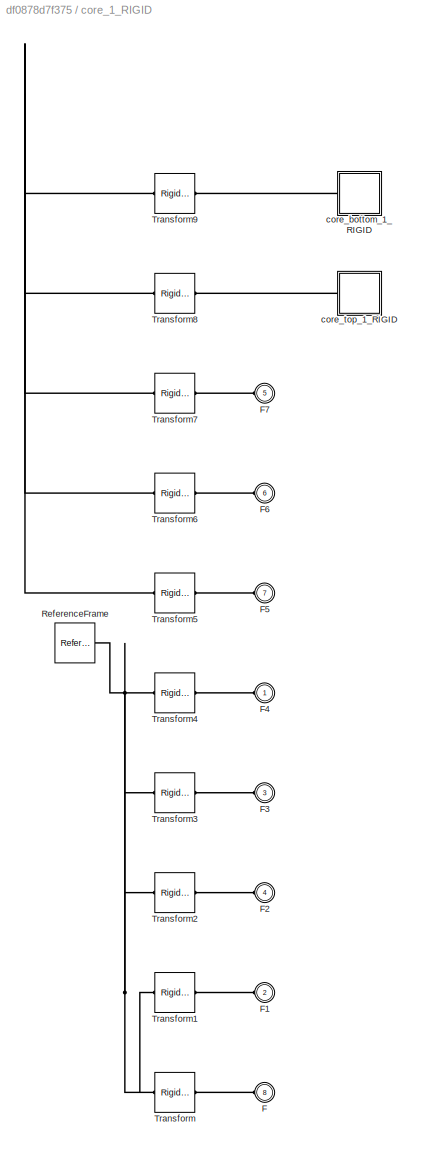
BLOCK [SubSystem] core_1_RIGID
  Ports = [0, 0, 0, 0, 0, 8]
  RequestExecContextInheritance = off
BLOCK [PMIOPort] core_1_RIGID/F
  Port = 8
  Side = Left
BLOCK [PMIOPort] core_1_RIGID/F1
  Port = 2
  Side = Left
BLOCK [PMIOPort] core_1_RIGID/F2
  Port = 4
  Side = Left
BLOCK [PMIOPort] core_1_RIGID/F3
  Port = 3
  Side = Left
BLOCK [PMIOPort] core_1_RIGID/F4
  Side = Left
BLOCK [PMIOPort] core_1_RIGID/F5
  Port = 7
  Side = Left
BLOCK [PMIOPort] core_1_RIGID/F6
  Port = 6
  Side = Left
BLOCK [PMIOPort] core_1_RIGID/F7
  Port = 5
  Side = Left
BLOCK [Reference] core_1_RIGID/ReferenceFrame  REF=sm_lib/Frames and
Transforms/Reference
Frame
  Ports = [0, 0, 0, 0, 0, 0, 1]
  SourceBlock = sm_lib/Frames and\nTransforms/Reference\nFrame
  SourceProductBaseCode = MS
  SourceType = Reference\nFrame
BLOCK [Reference] core_1_RIGID/Transform  REF=sm_lib/Frames and
Transforms/Rigid
Transform
  Ports = [0, 0, 0, 0, 0, 1, 1]
  SourceBlock = sm_lib/Frames and\nTransforms/Rigid\nTransform
  SourceProductBaseCode = MS
  SourceType = Rigid\nTransform
BLOCK [Reference] core_1_RIGID/Transform1  REF=sm_lib/Frames and
Transforms/Rigid
Transform
  Ports = [0, 0, 0, 0, 0, 1, 1]
  SourceBlock = sm_lib/Frames and\nTransforms/Rigid\nTransform
  SourceProductBaseCode = MS
  SourceType = Rigid\nTransform
BLOCK [Reference] core_1_RIGID/Transform2  REF=sm_lib/Frames and
Transforms/Rigid
Transform
  Ports = [0, 0, 0, 0, 0, 1, 1]
  SourceBlock = sm_lib/Frames and\nTransforms/Rigid\nTransform
  SourceProductBaseCode = MS
  SourceType = Rigid\nTransform
BLOCK [Reference] core_1_RIGID/Transform3  REF=sm_lib/Frames and
Transforms/Rigid
Transform
  Ports = [0, 0, 0, 0, 0, 1, 1]
  SourceBlock = sm_lib/Frames and\nTransforms/Rigid\nTransform
  SourceProductBaseCode = MS
  SourceType = Rigid\nTransform
BLOCK [Reference] core_1_RIGID/Transform4  REF=sm_lib/Frames and
Transforms/Rigid
Transform
  Ports = [0, 0, 0, 0, 0, 1, 1]
  SourceBlock = sm_lib/Frames and\nTransforms/Rigid\nTransform
  SourceProductBaseCode = MS
  SourceType = Rigid\nTransform
BLOCK [Reference] core_1_RIGID/Transform5  REF=sm_lib/Frames and
Transforms/Rigid
Transform
  Ports = [0, 0, 0, 0, 0, 1, 1]
  SourceBlock = sm_lib/Frames and\nTransforms/Rigid\nTransform
  SourceProductBaseCode = MS
  SourceType = Rigid\nTransform
BLOCK [Reference] core_1_RIGID/Transform6  REF=sm_lib/Frames and
Transforms/Rigid
Transform
  Ports = [0, 0, 0, 0, 0, 1, 1]
  SourceBlock = sm_lib/Frames and\nTransforms/Rigid\nTransform
  SourceProductBaseCode = MS
  SourceType = Rigid\nTransform
BLOCK [Reference] core_1_RIGID/Transform7  REF=sm_lib/Frames and
Transforms/Rigid
Transform
  Ports = [0, 0, 0, 0, 0, 1, 1]
  SourceBlock = sm_lib/Frames and\nTransforms/Rigid\nTransform
  SourceProductBaseCode = MS
  SourceType = Rigid\nTransform
BLOCK [Reference] core_1_RIGID/Transform8  REF=sm_lib/Frames and
Transforms/Rigid
Transform
  Ports = [0, 0, 0, 0, 0, 1, 1]
  SourceBlock = sm_lib/Frames and\nTransforms/Rigid\nTransform
  SourceProductBaseCode = MS
  SourceType = Rigid\nTransform
BLOCK [Reference] core_1_RIGID/Transform9  REF=sm_lib/Frames and
Transforms/Rigid
Transform
  Ports = [0, 0, 0, 0, 0, 1, 1]
  SourceBlock = sm_lib/Frames and\nTransforms/Rigid\nTransform
  SourceProductBaseCode = MS
  SourceType = Rigid\nTransform
BLOCK [SubSystem] core_1_RIGID/core_bottom_1_RIGID
  Ports = [0, 0, 0, 0, 0, 1]
  RequestExecContextInheritance = off
BLOCK [PMIOPort] core_1_RIGID/core_bottom_1_RIGID/F
  Side = Left
BLOCK [Reference] core_1_RIGID/core_bottom_1_RIGID/ReferenceFrame  REF=sm_lib/Frames and
Transforms/Reference
Frame
  Ports = [0, 0, 0, 0, 0, 0, 1]
  SourceBlock = sm_lib/Frames and\nTransforms/Reference\nFrame
  SourceProductBaseCode = MS
  SourceType = Reference\nFrame
BLOCK [Reference] core_1_RIGID/core_bottom_1_RIGID/Solid  REF=sm_lib/Body Elements/File Solid
  Ports = [0, 0, 0, 0, 0, 0, 1]
  SourceBlock = sm_lib/Body Elements/File Solid
  SourceProductBaseCode = MS
  SourceType = File Solid
BLOCK [SubSystem] core_1_RIGID/core_top_1_RIGID
  Ports = [0, 0, 0, 0, 0, 1]
  RequestExecContextInheritance = off
BLOCK [PMIOPort] core_1_RIGID/core_top_1_RIGID/F
  Side = Left
BLOCK [Reference] core_1_RIGID/core_top_1_RIGID/ReferenceFrame  REF=sm_lib/Frames and
Transforms/Reference
Frame
  Ports = [0, 0, 0, 0, 0, 0, 1]
  SourceBlock = sm_lib/Frames and\nTransforms/Reference\nFrame
  SourceProductBaseCode = MS
  SourceType = Reference\nFrame
BLOCK [Reference] core_1_RIGID/core_top_1_RIGID/Solid  REF=sm_lib/Body Elements/File Solid
  Ports = [0, 0, 0, 0, 0, 0, 1]
  SourceBlock = sm_lib/Body Elements/File Solid
  SourceProductBaseCode = MS
  SourceType = File Solid
BLOCK [SubSystem] elp_camera_1_RIGID
  Ports = [0, 0, 0, 0, 0, 3]
  RequestExecContextInheritance = off
BLOCK [PMIOPort] elp_camera_1_RIGID/F
  Port = 3
  Side = Left
BLOCK [PMIOPort] elp_camera_1_RIGID/F1
  Side = Left
BLOCK [PMIOPort] elp_camera_1_RIGID/F2
  Port = 2
  Side = Left
BLOCK [Reference] elp_camera_1_RIGID/ReferenceFrame  REF=sm_lib/Frames and
Transforms/Reference
Frame
  Ports = [0, 0, 0, 0, 0, 0, 1]
  SourceBlock = sm_lib/Frames and\nTransforms/Reference\nFrame
  SourceProductBaseCode = MS
  SourceType = Reference\nFrame
BLOCK [Reference] elp_camera_1_RIGID/Solid  REF=sm_lib/Body Elements/File Solid
  Ports = [0, 0, 0, 0, 0, 0, 1]
  SourceBlock = sm_lib/Body Elements/File Solid
  SourceProductBaseCode = MS
  SourceType = File Solid
BLOCK [Reference] elp_camera_1_RIGID/Transform  REF=sm_lib/Frames and
Transforms/Rigid
Transform
  Ports = [0, 0, 0, 0, 0, 1, 1]
  SourceBlock = sm_lib/Frames and\nTransforms/Rigid\nTransform
  SourceProductBaseCode = MS
  SourceType = Rigid\nTransform
BLOCK [Reference] elp_camera_1_RIGID/Transform1  REF=sm_lib/Frames and
Transforms/Rigid
Transform
  Ports = [0, 0, 0, 0, 0, 1, 1]
  SourceBlock = sm_lib/Frames and\nTransforms/Rigid\nTransform
  SourceProductBaseCode = MS
  SourceType = Rigid\nTransform
BLOCK [SubSystem] lipo_baterry_1_RIGID
  Ports = [0, 0, 0, 0, 0, 1]
  RequestExecContextInheritance = off
BLOCK [PMIOPort] lipo_baterry_1_RIGID/F
  Side = Left
BLOCK [Reference] lipo_baterry_1_RIGID/ReferenceFrame  REF=sm_lib/Frames and
Transforms/Reference
Frame
  Ports = [0, 0, 0, 0, 0, 0, 1]
  SourceBlock = sm_lib/Frames and\nTransforms/Reference\nFrame
  SourceProductBaseCode = MS
  SourceType = Reference\nFrame
BLOCK [Reference] lipo_baterry_1_RIGID/Solid  REF=sm_lib/Body Elements/File Solid
  Ports = [0, 0, 0, 0, 0, 0, 1]
  SourceBlock = sm_lib/Body Elements/File Solid
  SourceProductBaseCode = MS
  SourceType = File Solid
BLOCK [Reference] lipo_baterry_1_RIGID/Transform  REF=sm_lib/Frames and
Transforms/Rigid
Transform
  Ports = [0, 0, 0, 0, 0, 1, 1]
  SourceBlock = sm_lib/Frames and\nTransforms/Rigid\nTransform
  SourceProductBaseCode = MS
  SourceType = Rigid\nTransform
BLOCK [SubSystem] motherboard_1_RIGID
  Ports = [0, 0, 0, 0, 0, 1]
  RequestExecContextInheritance = off
BLOCK [PMIOPort] motherboard_1_RIGID/F
  Side = Left
BLOCK [Reference] motherboard_1_RIGID/ReferenceFrame  REF=sm_lib/Frames and
Transforms/Reference
Frame
  Ports = [0, 0, 0, 0, 0, 0, 1]
  SourceBlock = sm_lib/Frames and\nTransforms/Reference\nFrame
  SourceProductBaseCode = MS
  SourceType = Reference\nFrame
BLOCK [Reference] motherboard_1_RIGID/Solid  REF=sm_lib/Body Elements/File Solid
  Ports = [0, 0, 0, 0, 0, 0, 1]
  SourceBlock = sm_lib/Body Elements/File Solid
  SourceProductBaseCode = MS
  SourceType = File Solid
BLOCK [Reference] motherboard_1_RIGID/Transform  REF=sm_lib/Frames and
Transforms/Rigid
Transform
  Ports = [0, 0, 0, 0, 0, 1, 1]
  SourceBlock = sm_lib/Frames and\nTransforms/Rigid\nTransform
  SourceProductBaseCode = MS
  SourceType = Rigid\nTransform
LINE Constant:1 -> Demux:1
LINE Demux:1 -> Simulink-PS Converter:1
LINE Demux:2 -> Simulink-PS Converter1:1
LINE Demux:3 -> Simulink-PS Converter3:1
LINE Demux:4 -> Simulink-PS Converter2:1
PLINE Cylindrical:LConn1 -- adaptador_elp_2_RIGID:RConn1
PLINE Cylindrical:RConn1 -- core_1_RIGID:LConn3
PNET net1: MechanismConfiguration:RConn1 -- Solver Configuration:RConn1 -- Transform:LConn1 -- World:RConn1
PLINE Revolute:LConn1 -- adaptador_elp_1_RIGID:RConn1
PLINE Revolute:RConn1 -- core_1_RIGID:LConn4
PLINE Simulink-PS Converter1:RConn1 -- arm_3_RIGID:LConn2
PLINE Simulink-PS Converter2:RConn1 -- arm_4_RIGID:LConn2
PLINE Simulink-PS Converter3:RConn1 -- arm_1_RIGID:LConn2
PLINE Simulink-PS Converter:RConn1 -- arm_2_RIGID:LConn2
PLINE SixDOF:LConn1 -- Transform:RConn1
PLINE SixDOF:RConn1 -- elp_camera_1_RIGID:LConn2
PLINE adaptador_elp_1_RIGID/F1:RConn1 -- adaptador_elp_1_RIGID/Transform1:RConn1
PLINE adaptador_elp_1_RIGID/F:RConn1 -- adaptador_elp_1_RIGID/Transform:RConn1
PNET net2: adaptador_elp_1_RIGID/ReferenceFrame:RConn1 -- adaptador_elp_1_RIGID/Solid:RConn1 -- adaptador_elp_1_RIGID/Transform1:LConn1 -- adaptador_elp_1_RIGID/Transform:LConn1
PLINE adaptador_elp_1_RIGID:LConn1 -- elp_camera_1_RIGID:LConn3
PLINE adaptador_elp_2_RIGID/F1:RConn1 -- adaptador_elp_2_RIGID/Transform1:RConn1
PLINE adaptador_elp_2_RIGID/F:RConn1 -- adaptador_elp_2_RIGID/Transform:RConn1
PNET net3: adaptador_elp_2_RIGID/ReferenceFrame:RConn1 -- adaptador_elp_2_RIGID/Solid:RConn1 -- adaptador_elp_2_RIGID/Transform1:LConn1 -- adaptador_elp_2_RIGID/Transform:LConn1
PLINE adaptador_elp_2_RIGID:LConn1 -- elp_camera_1_RIGID:LConn1
PLINE arm_1_RIGID/APC_12x6_EP_Prop_1_RIGID/External Force and Torque:LConn1 -- arm_1_RIGID/APC_12x6_EP_Prop_1_RIGID/F1:RConn1
PNET net4: arm_1_RIGID/APC_12x6_EP_Prop_1_RIGID/External Force and Torque:RConn1 -- arm_1_RIGID/APC_12x6_EP_Prop_1_RIGID/F:RConn1 -- arm_1_RIGID/APC_12x6_EP_Prop_1_RIGID/ReferenceFrame:RConn1 -- arm_1_RIGID/APC_12x6_EP_Prop_1_RIGID/Solid:RConn1
PLINE arm_1_RIGID/APC_12x6_EP_Prop_1_RIGID:LConn1 -- arm_1_RIGID/Transform3:RConn1
PLINE arm_1_RIGID/APC_12x6_EP_Prop_1_RIGID:LConn2 -- arm_1_RIGID/force:RConn1
PLINE arm_1_RIGID/F:RConn1 -- arm_1_RIGID/Transform:RConn1
PNET net5: arm_1_RIGID/ReferenceFrame:RConn1 -- arm_1_RIGID/T_Motor_MN3110_1_RIGID:RConn1 -- arm_1_RIGID/Transform1:LConn1 -- arm_1_RIGID/Transform2:LConn1 -- arm_1_RIGID/Transform3:LConn1 -- arm_1_RIGID/Transform4:LConn1 -- arm_1_RIGID/Transform5:LConn1 -- arm_1_RIGID/Transform6:LConn1 -- arm_1_RIGID/Transform:LConn1
PLINE arm_1_RIGID/T_Motor_MN3110_1_RIGID/F:RConn1 -- arm_1_RIGID/T_Motor_MN3110_1_RIGID/Transform:LConn1
PNET net6: arm_1_RIGID/T_Motor_MN3110_1_RIGID/ReferenceFrame:RConn1 -- arm_1_RIGID/T_Motor_MN3110_1_RIGID/T_Motor_MN3110_step_1_RIGID:LConn1 -- arm_1_RIGID/T_Motor_MN3110_1_RIGID/Transform:RConn1
PLINE arm_1_RIGID/T_Motor_MN3110_1_RIGID/T_Motor_MN3110_step_1_RIGID/F:RConn1 -- arm_1_RIGID/T_Motor_MN3110_1_RIGID/T_Motor_MN3110_step_1_RIGID/Transform1:LConn1
PNET net7: arm_1_RIGID/T_Motor_MN3110_1_RIGID/T_Motor_MN3110_step_1_RIGID/MN3110_step_1_RIGID/F:RConn1 -- arm_1_RIGID/T_Motor_MN3110_1_RIGID/T_Motor_MN3110_step_1_RIGID/MN3110_step_1_RIGID/ReferenceFrame:RConn1 -- arm_1_RIGID/T_Motor_MN3110_1_RIGID/T_Motor_MN3110_step_1_RIGID/MN3110_step_1_RIGID/Solid:RConn1
PLINE arm_1_RIGID/T_Motor_MN3110_1_RIGID/T_Motor_MN3110_step_1_RIGID/MN3110_step_1_RIGID:LConn1 -- arm_1_RIGID/T_Motor_MN3110_1_RIGID/T_Motor_MN3110_step_1_RIGID/Transform:RConn1
PNET net8: arm_1_RIGID/T_Motor_MN3110_1_RIGID/T_Motor_MN3110_step_1_RIGID/ReferenceFrame:RConn1 -- arm_1_RIGID/T_Motor_MN3110_1_RIGID/T_Motor_MN3110_step_1_RIGID/Transform1:RConn1 -- arm_1_RIGID/T_Motor_MN3110_1_RIGID/T_Motor_MN3110_step_1_RIGID/Transform:LConn1
PLINE arm_1_RIGID/Transform1:RConn1 -- arm_1_RIGID/soporte_protector_1_RIGID:LConn1
PLINE arm_1_RIGID/Transform2:RConn1 -- arm_1_RIGID/protector_1_RIGID:LConn1
PLINE arm_1_RIGID/Transform4:RConn1 -- arm_1_RIGID/soporte_protector_2_RIGID:LConn1
PLINE arm_1_RIGID/Transform5:RConn1 -- arm_1_RIGID/arm1_1_RIGID:LConn1
PLINE arm_1_RIGID/Transform6:RConn1 -- arm_1_RIGID/arm2_1_RIGID:LConn1
PNET net9: arm_1_RIGID/arm1_1_RIGID/F:RConn1 -- arm_1_RIGID/arm1_1_RIGID/ReferenceFrame:RConn1 -- arm_1_RIGID/arm1_1_RIGID/Solid:RConn1
PNET net10: arm_1_RIGID/arm2_1_RIGID/F:RConn1 -- arm_1_RIGID/arm2_1_RIGID/ReferenceFrame:RConn1 -- arm_1_RIGID/arm2_1_RIGID/Solid:RConn1
PNET net11: arm_1_RIGID/protector_1_RIGID/F:RConn1 -- arm_1_RIGID/protector_1_RIGID/ReferenceFrame:RConn1 -- arm_1_RIGID/protector_1_RIGID/Solid:RConn1
PNET net12: arm_1_RIGID/soporte_protector_1_RIGID/F:RConn1 -- arm_1_RIGID/soporte_protector_1_RIGID/ReferenceFrame:RConn1 -- arm_1_RIGID/soporte_protector_1_RIGID/Solid:RConn1
PNET net13: arm_1_RIGID/soporte_protector_2_RIGID/F:RConn1 -- arm_1_RIGID/soporte_protector_2_RIGID/ReferenceFrame:RConn1 -- arm_1_RIGID/soporte_protector_2_RIGID/Solid:RConn1
PLINE arm_1_RIGID:LConn1 -- core_1_RIGID:LConn1
PLINE arm_2_RIGID/APC_12x6_EP_Prop_1_RIGID/External Force and Torque:LConn1 -- arm_2_RIGID/APC_12x6_EP_Prop_1_RIGID/F1:RConn1
PNET net14: arm_2_RIGID/APC_12x6_EP_Prop_1_RIGID/External Force and Torque:RConn1 -- arm_2_RIGID/APC_12x6_EP_Prop_1_RIGID/F:RConn1 -- arm_2_RIGID/APC_12x6_EP_Prop_1_RIGID/ReferenceFrame:RConn1 -- arm_2_RIGID/APC_12x6_EP_Prop_1_RIGID/Solid:RConn1
PLINE arm_2_RIGID/APC_12x6_EP_Prop_1_RIGID:LConn1 -- arm_2_RIGID/Transform3:RConn1
PLINE arm_2_RIGID/APC_12x6_EP_Prop_1_RIGID:LConn2 -- arm_2_RIGID/force:RConn1
PLINE arm_2_RIGID/F:RConn1 -- arm_2_RIGID/Transform:RConn1
PNET net15: arm_2_RIGID/ReferenceFrame:RConn1 -- arm_2_RIGID/T_Motor_MN3110_1_RIGID:RConn1 -- arm_2_RIGID/Transform1:LConn1 -- arm_2_RIGID/Transform2:LConn1 -- arm_2_RIGID/Transform3:LConn1 -- arm_2_RIGID/Transform4:LConn1 -- arm_2_RIGID/Transform5:LConn1 -- arm_2_RIGID/Transform6:LConn1 -- arm_2_RIGID/Transform:LConn1
PLINE arm_2_RIGID/T_Motor_MN3110_1_RIGID/F:RConn1 -- arm_2_RIGID/T_Motor_MN3110_1_RIGID/Transform:LConn1
PNET net16: arm_2_RIGID/T_Motor_MN3110_1_RIGID/ReferenceFrame:RConn1 -- arm_2_RIGID/T_Motor_MN3110_1_RIGID/T_Motor_MN3110_step_1_RIGID:LConn1 -- arm_2_RIGID/T_Motor_MN3110_1_RIGID/Transform:RConn1
PLINE arm_2_RIGID/T_Motor_MN3110_1_RIGID/T_Motor_MN3110_step_1_RIGID/F:RConn1 -- arm_2_RIGID/T_Motor_MN3110_1_RIGID/T_Motor_MN3110_step_1_RIGID/Transform1:LConn1
PNET net17: arm_2_RIGID/T_Motor_MN3110_1_RIGID/T_Motor_MN3110_step_1_RIGID/MN3110_step_1_RIGID/F:RConn1 -- arm_2_RIGID/T_Motor_MN3110_1_RIGID/T_Motor_MN3110_step_1_RIGID/MN3110_step_1_RIGID/ReferenceFrame:RConn1 -- arm_2_RIGID/T_Motor_MN3110_1_RIGID/T_Motor_MN3110_step_1_RIGID/MN3110_step_1_RIGID/Solid:RConn1
PLINE arm_2_RIGID/T_Motor_MN3110_1_RIGID/T_Motor_MN3110_step_1_RIGID/MN3110_step_1_RIGID:LConn1 -- arm_2_RIGID/T_Motor_MN3110_1_RIGID/T_Motor_MN3110_step_1_RIGID/Transform:RConn1
PNET net18: arm_2_RIGID/T_Motor_MN3110_1_RIGID/T_Motor_MN3110_step_1_RIGID/ReferenceFrame:RConn1 -- arm_2_RIGID/T_Motor_MN3110_1_RIGID/T_Motor_MN3110_step_1_RIGID/Transform1:RConn1 -- arm_2_RIGID/T_Motor_MN3110_1_RIGID/T_Motor_MN3110_step_1_RIGID/Transform:LConn1
PLINE arm_2_RIGID/Transform1:RConn1 -- arm_2_RIGID/soporte_protector_1_RIGID:LConn1
PLINE arm_2_RIGID/Transform2:RConn1 -- arm_2_RIGID/protector_1_RIGID:LConn1
PLINE arm_2_RIGID/Transform4:RConn1 -- arm_2_RIGID/soporte_protector_2_RIGID:LConn1
PLINE arm_2_RIGID/Transform5:RConn1 -- arm_2_RIGID/arm1_1_RIGID:LConn1
PLINE arm_2_RIGID/Transform6:RConn1 -- arm_2_RIGID/arm2_1_RIGID:LConn1
PNET net19: arm_2_RIGID/arm1_1_RIGID/F:RConn1 -- arm_2_RIGID/arm1_1_RIGID/ReferenceFrame:RConn1 -- arm_2_RIGID/arm1_1_RIGID/Solid:RConn1
PNET net20: arm_2_RIGID/arm2_1_RIGID/F:RConn1 -- arm_2_RIGID/arm2_1_RIGID/ReferenceFrame:RConn1 -- arm_2_RIGID/arm2_1_RIGID/Solid:RConn1
PNET net21: arm_2_RIGID/protector_1_RIGID/F:RConn1 -- arm_2_RIGID/protector_1_RIGID/ReferenceFrame:RConn1 -- arm_2_RIGID/protector_1_RIGID/Solid:RConn1
PNET net22: arm_2_RIGID/soporte_protector_1_RIGID/F:RConn1 -- arm_2_RIGID/soporte_protector_1_RIGID/ReferenceFrame:RConn1 -- arm_2_RIGID/soporte_protector_1_RIGID/Solid:RConn1
PNET net23: arm_2_RIGID/soporte_protector_2_RIGID/F:RConn1 -- arm_2_RIGID/soporte_protector_2_RIGID/ReferenceFrame:RConn1 -- arm_2_RIGID/soporte_protector_2_RIGID/Solid:RConn1
PLINE arm_2_RIGID:LConn1 -- core_1_RIGID:LConn7
PLINE arm_3_RIGID/APC_12x6_EP_Prop_1_RIGID/External Force and Torque:LConn1 -- arm_3_RIGID/APC_12x6_EP_Prop_1_RIGID/F1:RConn1
PNET net24: arm_3_RIGID/APC_12x6_EP_Prop_1_RIGID/External Force and Torque:RConn1 -- arm_3_RIGID/APC_12x6_EP_Prop_1_RIGID/F:RConn1 -- arm_3_RIGID/APC_12x6_EP_Prop_1_RIGID/ReferenceFrame:RConn1 -- arm_3_RIGID/APC_12x6_EP_Prop_1_RIGID/Solid:RConn1
PLINE arm_3_RIGID/APC_12x6_EP_Prop_1_RIGID:LConn1 -- arm_3_RIGID/Transform3:RConn1
PLINE arm_3_RIGID/APC_12x6_EP_Prop_1_RIGID:LConn2 -- arm_3_RIGID/force:RConn1
PLINE arm_3_RIGID/F:RConn1 -- arm_3_RIGID/Transform:RConn1
PNET net25: arm_3_RIGID/ReferenceFrame:RConn1 -- arm_3_RIGID/T_Motor_MN3110_1_RIGID:RConn1 -- arm_3_RIGID/Transform1:LConn1 -- arm_3_RIGID/Transform2:LConn1 -- arm_3_RIGID/Transform3:LConn1 -- arm_3_RIGID/Transform4:LConn1 -- arm_3_RIGID/Transform5:LConn1 -- arm_3_RIGID/Transform6:LConn1 -- arm_3_RIGID/Transform:LConn1
PLINE arm_3_RIGID/T_Motor_MN3110_1_RIGID/F:RConn1 -- arm_3_RIGID/T_Motor_MN3110_1_RIGID/Transform:LConn1
PNET net26: arm_3_RIGID/T_Motor_MN3110_1_RIGID/ReferenceFrame:RConn1 -- arm_3_RIGID/T_Motor_MN3110_1_RIGID/T_Motor_MN3110_step_1_RIGID:LConn1 -- arm_3_RIGID/T_Motor_MN3110_1_RIGID/Transform:RConn1
PLINE arm_3_RIGID/T_Motor_MN3110_1_RIGID/T_Motor_MN3110_step_1_RIGID/F:RConn1 -- arm_3_RIGID/T_Motor_MN3110_1_RIGID/T_Motor_MN3110_step_1_RIGID/Transform1:LConn1
PNET net27: arm_3_RIGID/T_Motor_MN3110_1_RIGID/T_Motor_MN3110_step_1_RIGID/MN3110_step_1_RIGID/F:RConn1 -- arm_3_RIGID/T_Motor_MN3110_1_RIGID/T_Motor_MN3110_step_1_RIGID/MN3110_step_1_RIGID/ReferenceFrame:RConn1 -- arm_3_RIGID/T_Motor_MN3110_1_RIGID/T_Motor_MN3110_step_1_RIGID/MN3110_step_1_RIGID/Solid:RConn1
PLINE arm_3_RIGID/T_Motor_MN3110_1_RIGID/T_Motor_MN3110_step_1_RIGID/MN3110_step_1_RIGID:LConn1 -- arm_3_RIGID/T_Motor_MN3110_1_RIGID/T_Motor_MN3110_step_1_RIGID/Transform:RConn1
PNET net28: arm_3_RIGID/T_Motor_MN3110_1_RIGID/T_Motor_MN3110_step_1_RIGID/ReferenceFrame:RConn1 -- arm_3_RIGID/T_Motor_MN3110_1_RIGID/T_Motor_MN3110_step_1_RIGID/Transform1:RConn1 -- arm_3_RIGID/T_Motor_MN3110_1_RIGID/T_Motor_MN3110_step_1_RIGID/Transform:LConn1
PLINE arm_3_RIGID/Transform1:RConn1 -- arm_3_RIGID/soporte_protector_1_RIGID:LConn1
PLINE arm_3_RIGID/Transform2:RConn1 -- arm_3_RIGID/protector_1_RIGID:LConn1
PLINE arm_3_RIGID/Transform4:RConn1 -- arm_3_RIGID/soporte_protector_2_RIGID:LConn1
PLINE arm_3_RIGID/Transform5:RConn1 -- arm_3_RIGID/arm1_1_RIGID:LConn1
PLINE arm_3_RIGID/Transform6:RConn1 -- arm_3_RIGID/arm2_1_RIGID:LConn1
PNET net29: arm_3_RIGID/arm1_1_RIGID/F:RConn1 -- arm_3_RIGID/arm1_1_RIGID/ReferenceFrame:RConn1 -- arm_3_RIGID/arm1_1_RIGID/Solid:RConn1
PNET net30: arm_3_RIGID/arm2_1_RIGID/F:RConn1 -- arm_3_RIGID/arm2_1_RIGID/ReferenceFrame:RConn1 -- arm_3_RIGID/arm2_1_RIGID/Solid:RConn1
PNET net31: arm_3_RIGID/protector_1_RIGID/F:RConn1 -- arm_3_RIGID/protector_1_RIGID/ReferenceFrame:RConn1 -- arm_3_RIGID/protector_1_RIGID/Solid:RConn1
PNET net32: arm_3_RIGID/soporte_protector_1_RIGID/F:RConn1 -- arm_3_RIGID/soporte_protector_1_RIGID/ReferenceFrame:RConn1 -- arm_3_RIGID/soporte_protector_1_RIGID/Solid:RConn1
PNET net33: arm_3_RIGID/soporte_protector_2_RIGID/F:RConn1 -- arm_3_RIGID/soporte_protector_2_RIGID/ReferenceFrame:RConn1 -- arm_3_RIGID/soporte_protector_2_RIGID/Solid:RConn1
PLINE arm_3_RIGID:LConn1 -- core_1_RIGID:LConn6
PLINE arm_4_RIGID/APC_12x6_EP_Prop_1_RIGID/External Force and Torque:LConn1 -- arm_4_RIGID/APC_12x6_EP_Prop_1_RIGID/F1:RConn1
PNET net34: arm_4_RIGID/APC_12x6_EP_Prop_1_RIGID/External Force and Torque:RConn1 -- arm_4_RIGID/APC_12x6_EP_Prop_1_RIGID/F:RConn1 -- arm_4_RIGID/APC_12x6_EP_Prop_1_RIGID/ReferenceFrame:RConn1 -- arm_4_RIGID/APC_12x6_EP_Prop_1_RIGID/Solid:RConn1
PLINE arm_4_RIGID/APC_12x6_EP_Prop_1_RIGID:LConn1 -- arm_4_RIGID/Transform3:RConn1
PLINE arm_4_RIGID/APC_12x6_EP_Prop_1_RIGID:LConn2 -- arm_4_RIGID/force:RConn1
PLINE arm_4_RIGID/F:RConn1 -- arm_4_RIGID/Transform:RConn1
PNET net35: arm_4_RIGID/ReferenceFrame:RConn1 -- arm_4_RIGID/T_Motor_MN3110_1_RIGID:RConn1 -- arm_4_RIGID/Transform1:LConn1 -- arm_4_RIGID/Transform2:LConn1 -- arm_4_RIGID/Transform3:LConn1 -- arm_4_RIGID/Transform4:LConn1 -- arm_4_RIGID/Transform5:LConn1 -- arm_4_RIGID/Transform6:LConn1 -- arm_4_RIGID/Transform:LConn1
PLINE arm_4_RIGID/T_Motor_MN3110_1_RIGID/F:RConn1 -- arm_4_RIGID/T_Motor_MN3110_1_RIGID/Transform:LConn1
PNET net36: arm_4_RIGID/T_Motor_MN3110_1_RIGID/ReferenceFrame:RConn1 -- arm_4_RIGID/T_Motor_MN3110_1_RIGID/T_Motor_MN3110_step_1_RIGID:LConn1 -- arm_4_RIGID/T_Motor_MN3110_1_RIGID/Transform:RConn1
PLINE arm_4_RIGID/T_Motor_MN3110_1_RIGID/T_Motor_MN3110_step_1_RIGID/F:RConn1 -- arm_4_RIGID/T_Motor_MN3110_1_RIGID/T_Motor_MN3110_step_1_RIGID/Transform1:LConn1
PNET net37: arm_4_RIGID/T_Motor_MN3110_1_RIGID/T_Motor_MN3110_step_1_RIGID/MN3110_step_1_RIGID/F:RConn1 -- arm_4_RIGID/T_Motor_MN3110_1_RIGID/T_Motor_MN3110_step_1_RIGID/MN3110_step_1_RIGID/ReferenceFrame:RConn1 -- arm_4_RIGID/T_Motor_MN3110_1_RIGID/T_Motor_MN3110_step_1_RIGID/MN3110_step_1_RIGID/Solid:RConn1
PLINE arm_4_RIGID/T_Motor_MN3110_1_RIGID/T_Motor_MN3110_step_1_RIGID/MN3110_step_1_RIGID:LConn1 -- arm_4_RIGID/T_Motor_MN3110_1_RIGID/T_Motor_MN3110_step_1_RIGID/Transform:RConn1
PNET net38: arm_4_RIGID/T_Motor_MN3110_1_RIGID/T_Motor_MN3110_step_1_RIGID/ReferenceFrame:RConn1 -- arm_4_RIGID/T_Motor_MN3110_1_RIGID/T_Motor_MN3110_step_1_RIGID/Transform1:RConn1 -- arm_4_RIGID/T_Motor_MN3110_1_RIGID/T_Motor_MN3110_step_1_RIGID/Transform:LConn1
PLINE arm_4_RIGID/Transform1:RConn1 -- arm_4_RIGID/soporte_protector_1_RIGID:LConn1
PLINE arm_4_RIGID/Transform2:RConn1 -- arm_4_RIGID/protector_1_RIGID:LConn1
PLINE arm_4_RIGID/Transform4:RConn1 -- arm_4_RIGID/soporte_protector_2_RIGID:LConn1
PLINE arm_4_RIGID/Transform5:RConn1 -- arm_4_RIGID/arm1_1_RIGID:LConn1
PLINE arm_4_RIGID/Transform6:RConn1 -- arm_4_RIGID/arm2_1_RIGID:LConn1
PNET net39: arm_4_RIGID/arm1_1_RIGID/F:RConn1 -- arm_4_RIGID/arm1_1_RIGID/ReferenceFrame:RConn1 -- arm_4_RIGID/arm1_1_RIGID/Solid:RConn1
PNET net40: arm_4_RIGID/arm2_1_RIGID/F:RConn1 -- arm_4_RIGID/arm2_1_RIGID/ReferenceFrame:RConn1 -- arm_4_RIGID/arm2_1_RIGID/Solid:RConn1
PNET net41: arm_4_RIGID/protector_1_RIGID/F:RConn1 -- arm_4_RIGID/protector_1_RIGID/ReferenceFrame:RConn1 -- arm_4_RIGID/protector_1_RIGID/Solid:RConn1
PNET net42: arm_4_RIGID/soporte_protector_1_RIGID/F:RConn1 -- arm_4_RIGID/soporte_protector_1_RIGID/ReferenceFrame:RConn1 -- arm_4_RIGID/soporte_protector_1_RIGID/Solid:RConn1
PNET net43: arm_4_RIGID/soporte_protector_2_RIGID/F:RConn1 -- arm_4_RIGID/soporte_protector_2_RIGID/ReferenceFrame:RConn1 -- arm_4_RIGID/soporte_protector_2_RIGID/Solid:RConn1
PLINE arm_4_RIGID:LConn1 -- core_1_RIGID:LConn5
PLINE core_1_RIGID/F1:RConn1 -- core_1_RIGID/Transform1:RConn1
PLINE core_1_RIGID/F2:RConn1 -- core_1_RIGID/Transform2:RConn1
PLINE core_1_RIGID/F3:RConn1 -- core_1_RIGID/Transform3:RConn1
PLINE core_1_RIGID/F4:RConn1 -- core_1_RIGID/Transform4:RConn1
PLINE core_1_RIGID/F5:RConn1 -- core_1_RIGID/Transform5:RConn1
PLINE core_1_RIGID/F6:RConn1 -- core_1_RIGID/Transform6:RConn1
PLINE core_1_RIGID/F7:RConn1 -- core_1_RIGID/Transform7:RConn1
PLINE core_1_RIGID/F:RConn1 -- core_1_RIGID/Transform:RConn1
PNET net44: core_1_RIGID/ReferenceFrame:RConn1 -- core_1_RIGID/Transform1:LConn1 -- core_1_RIGID/Transform2:LConn1 -- core_1_RIGID/Transform3:LConn1 -- core_1_RIGID/Transform4:LConn1 -- core_1_RIGID/Transform5:LConn1 -- core_1_RIGID/Transform6:LConn1 -- core_1_RIGID/Transform7:LConn1 -- core_1_RIGID/Transform8:LConn1 -- core_1_RIGID/Transform9:LConn1 -- core_1_RIGID/Transform:LConn1
PLINE core_1_RIGID/Transform8:RConn1 -- core_1_RIGID/core_top_1_RIGID:LConn1
PLINE core_1_RIGID/Transform9:RConn1 -- core_1_RIGID/core_bottom_1_RIGID:LConn1
PNET net45: core_1_RIGID/core_bottom_1_RIGID/F:RConn1 -- core_1_RIGID/core_bottom_1_RIGID/ReferenceFrame:RConn1 -- core_1_RIGID/core_bottom_1_RIGID/Solid:RConn1
PNET net46: core_1_RIGID/core_top_1_RIGID/F:RConn1 -- core_1_RIGID/core_top_1_RIGID/ReferenceFrame:RConn1 -- core_1_RIGID/core_top_1_RIGID/Solid:RConn1
PLINE core_1_RIGID:LConn2 -- motherboard_1_RIGID:LConn1
PLINE core_1_RIGID:LConn8 -- lipo_baterry_1_RIGID:LConn1
PLINE elp_camera_1_RIGID/F1:RConn1 -- elp_camera_1_RIGID/Transform1:RConn1
PNET net47: elp_camera_1_RIGID/F2:RConn1 -- elp_camera_1_RIGID/ReferenceFrame:RConn1 -- elp_camera_1_RIGID/Solid:RConn1 -- elp_camera_1_RIGID/Transform1:LConn1 -- elp_camera_1_RIGID/Transform:LConn1
PLINE elp_camera_1_RIGID/F:RConn1 -- elp_camera_1_RIGID/Transform:RConn1
PLINE lipo_baterry_1_RIGID/F:RConn1 -- lipo_baterry_1_RIGID/Transform:RConn1
PNET net48: lipo_baterry_1_RIGID/ReferenceFrame:RConn1 -- lipo_baterry_1_RIGID/Solid:RConn1 -- lipo_baterry_1_RIGID/Transform:LConn1
PLINE motherboard_1_RIGID/F:RConn1 -- motherboard_1_RIGID/Transform:RConn1
PNET net49: motherboard_1_RIGID/ReferenceFrame:RConn1 -- motherboard_1_RIGID/Solid:RConn1 -- motherboard_1_RIGID/Transform:LConn1
note: PNET lines group multi-terminal physical nets as a canonical sorted terminal list (undirected conserving connections); 2-terminal nets keep the pairwise PLINE form
